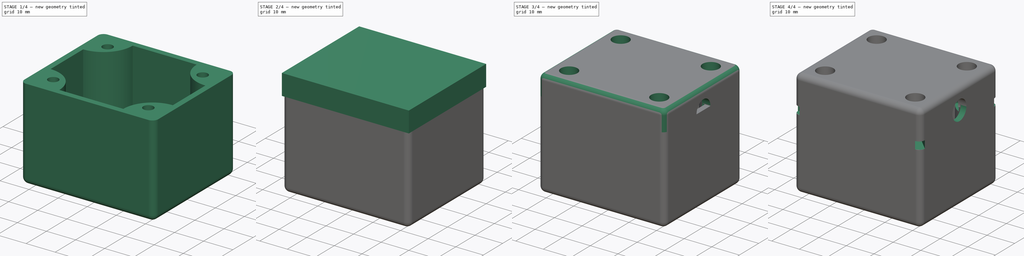
[diagram: build sequence overview — one tinted view per stage of 4, left to right]
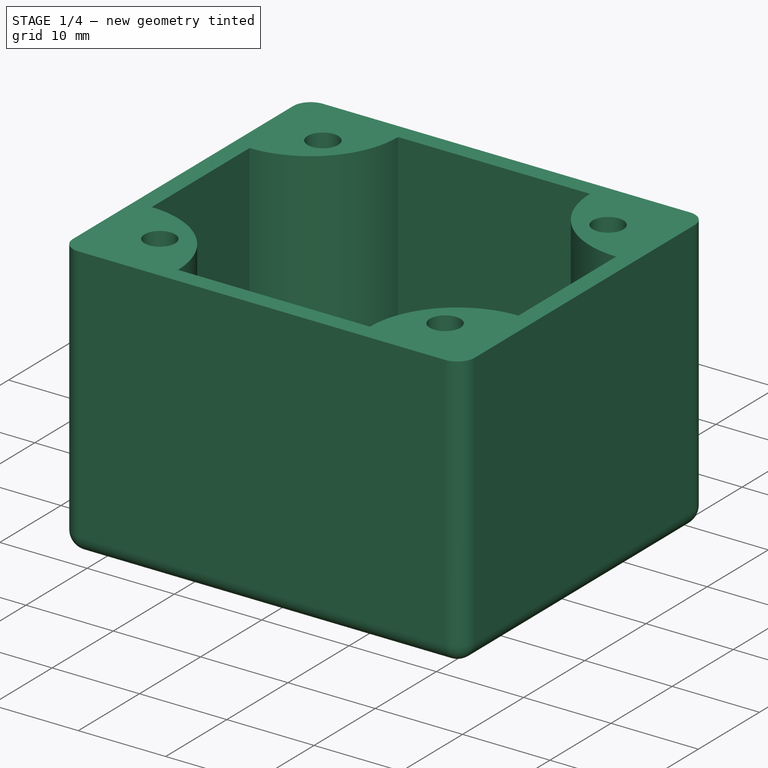
[diagram: stage 1 of 4 — iso view after this stage's code; geometry added in this stage tinted green]
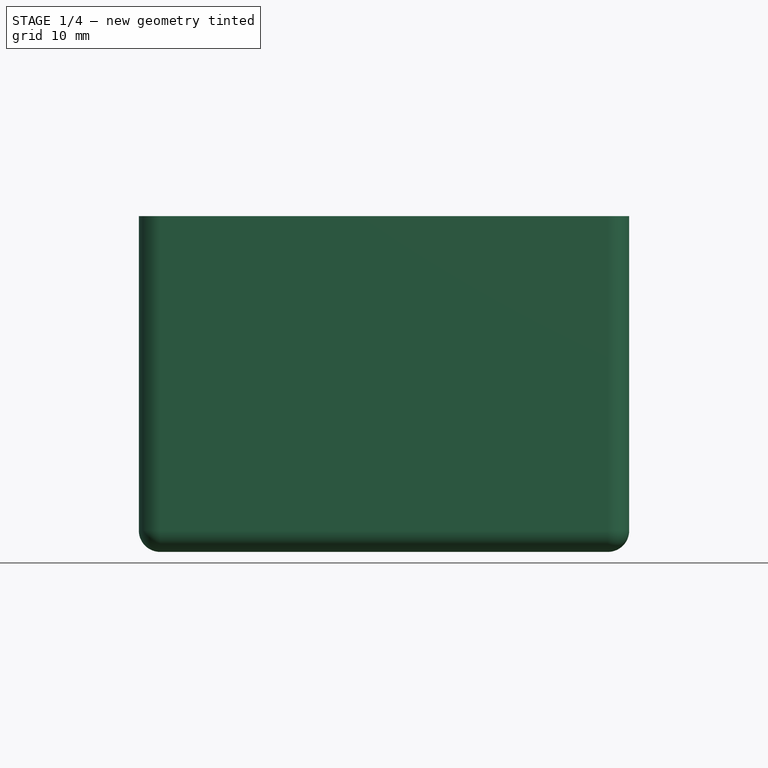
[diagram: stage 1 of 4 — front view after this stage's code; geometry added in this stage tinted green]
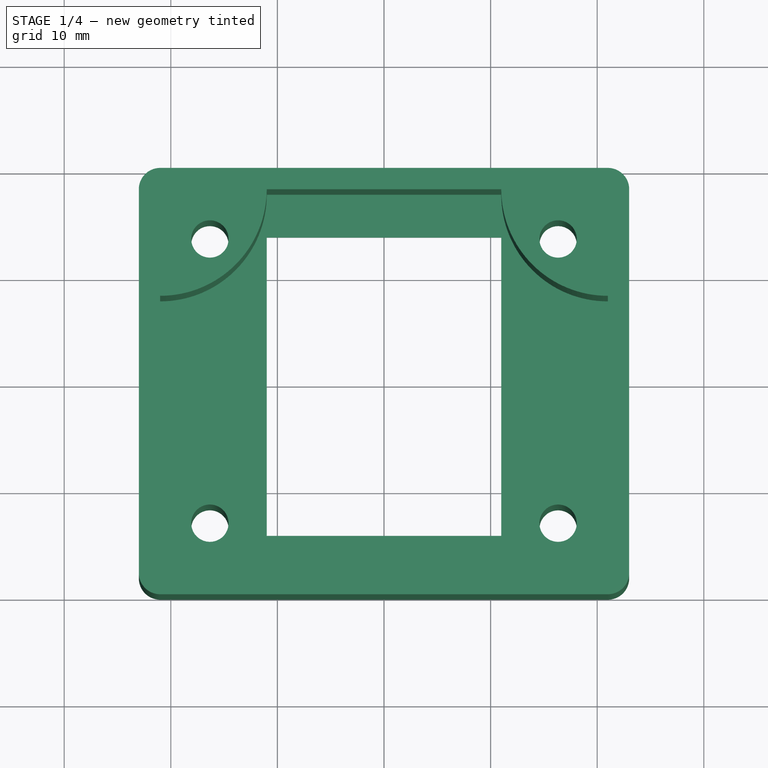
[diagram: stage 1 of 4 — top view after this stage's code; geometry added in this stage tinted green]
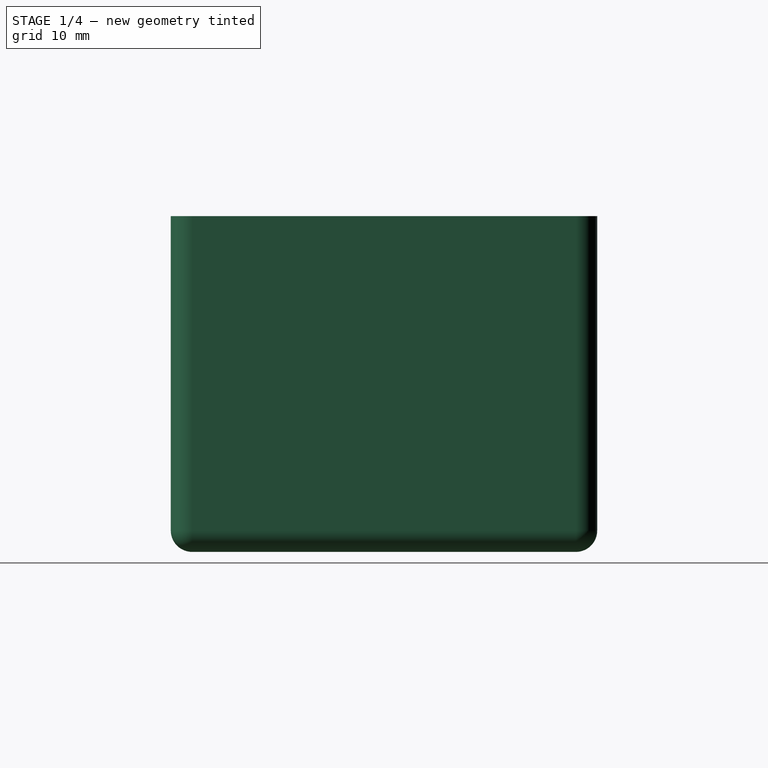
[diagram: stage 1 of 4 — right view after this stage's code; geometry added in this stage tinted green]
FCSTD DOCUMENT  (FreeCAD 0.18.4R)
Label: SwitchCase
License: All rights reserved
LicenseURL: http://en.wikipedia.org/wiki/All_rights_reserved
objects: Sketcher::SketchObject×12, PartDesign::Pocket×6, PartDesign::Pad×5, PartDesign::Fillet×2, PartDesign::Body×2, Spreadsheet::Sheet×1, PartDesign::ShapeBinder×1, App::Part×1
note: 39 computed .brp shape members not serialized (recipe doc carries the construction recipe); baked Part::Feature solids carry a one-line shape summary decoded from their .brp

FEATURE [Sketcher::SketchObject] Sketch
  MapMode = 5
  Support = -> [XY_Plane001]
  expr: Constraints[119] = Screws.M3Radius
  expr: Constraints[116] = Screws.M3NutRadius
  sketch-geometry (126):
    g0: LineSegment StartX=-11 StartY=14 StartZ=0 EndX=11 EndY=14 EndZ=0
    g1: LineSegment StartX=11 StartY=14 StartZ=0 EndX=11 EndY=-14 EndZ=0
    g2: LineSegment StartX=11 StartY=-14 StartZ=0 EndX=-11 EndY=-14 EndZ=0
    g3: LineSegment StartX=-11 StartY=-14 StartZ=0 EndX=-11 EndY=14 EndZ=0
    g4: LineSegment StartX=-23 StartY=20 StartZ=0 EndX=23 EndY=20 EndZ=0
    g5: LineSegment StartX=23 StartY=20 StartZ=0 EndX=23 EndY=-20 EndZ=0
    g6: LineSegment StartX=23 StartY=-20 StartZ=0 EndX=-23 EndY=-20 EndZ=0
    g7: LineSegment StartX=-23 StartY=-20 StartZ=0 EndX=-23 EndY=20 EndZ=0
    g8: LineSegment [constr] StartX=-11 StartY=14 StartZ=0 EndX=-23 EndY=14 EndZ=0
    g9: LineSegment [constr] StartX=11 StartY=14 StartZ=0 EndX=11 EndY=20 EndZ=0
    g10: LineSegment [constr] StartX=11 StartY=-14 StartZ=0 EndX=23 EndY=-14 EndZ=0
    g11: LineSegment [constr] StartX=-11 StartY=-14 StartZ=0 EndX=-11 EndY=-20 EndZ=0
    g12: LineSegment StartX=-11 StartY=18 StartZ=0 EndX=11 EndY=18 EndZ=0
    g13: LineSegment StartX=21 StartY=8 StartZ=0 EndX=21 EndY=-8 EndZ=0
    g14: LineSegment StartX=11 StartY=-18 StartZ=0 EndX=-11 EndY=-18 EndZ=0
    g15: LineSegment StartX=-21 StartY=-8 StartZ=0 EndX=-21 EndY=8 EndZ=0
    g16: LineSegment [constr] StartX=-21 StartY=18 StartZ=0 EndX=-23 EndY=18 EndZ=0
    g17: LineSegment [constr] StartX=21 StartY=18 StartZ=0 EndX=21 EndY=20 EndZ=0
    g18: LineSegment [constr] StartX=21 StartY=-18 StartZ=0 EndX=23 EndY=-18 EndZ=0
    g19: LineSegment [constr] StartX=-21 StartY=-18 StartZ=0 EndX=-21 EndY=-20 EndZ=0
    g20: ArcOfCircle CenterX=-21 CenterY=18 CenterZ=0 NormalX=0 NormalY=0 NormalZ=1 AngleXU=0 Radius=10 StartAngle=4.71239 EndAngle=6.28319
    g21: ArcOfCircle CenterX=21 CenterY=18 CenterZ=0 NormalX=0 NormalY=0 NormalZ=1 AngleXU=0 Radius=10 StartAngle=3.14159 EndAngle=4.71239
    g22: ArcOfCircle CenterX=21 CenterY=-18 CenterZ=0 NormalX=0 NormalY=0 NormalZ=1 AngleXU=0 Radius=10 StartAngle=1.5708 EndAngle=3.14159
    g23: ArcOfCircle CenterX=-21 CenterY=-18 CenterZ=0 NormalX=0 NormalY=0 NormalZ=1 AngleXU=0 Radius=10 StartAngle=0 EndAngle=1.5708
    g24: LineSegment StartX=-11 StartY=18 StartZ=0 EndX=-21 EndY=18 EndZ=0
    g25: LineSegment StartX=11 StartY=18 StartZ=0 EndX=21 EndY=18 EndZ=0
    g26: LineSegment StartX=21 StartY=18 StartZ=0 EndX=21 EndY=8 EndZ=0
    g27: LineSegment StartX=21 StartY=-8 StartZ=0 EndX=21 EndY=-18 EndZ=0
    g28: LineSegment StartX=11 StartY=-18 StartZ=0 EndX=21 EndY=-18 EndZ=0
    g29: LineSegment StartX=-21 StartY=18 StartZ=0 EndX=-21 EndY=8 EndZ=0
    g30: LineSegment StartX=-21 StartY=-8 StartZ=0 EndX=-21 EndY=-18 EndZ=0
    g31: LineSegment StartX=-21 StartY=-18 StartZ=0 EndX=-11 EndY=-18 EndZ=0
    g32: LineSegment [constr] StartX=-21 StartY=-18 StartZ=0 EndX=-13.9289 EndY=-10.9289 EndZ=0
    g33: LineSegment [constr] StartX=-21 StartY=-8 StartZ=0 EndX=-13.9289 EndY=-10.9289 EndZ=0
    g34: LineSegment [constr] StartX=-13.9289 StartY=-10.9289 StartZ=0 EndX=-11 EndY=-18 EndZ=0
    g35: LineSegment [constr] StartX=-13.0489 StartY=-14.2131 StartZ=0 EndX=-13.9289 EndY=-10.9289 EndZ=0
    g36: LineSegment [constr] StartX=-13.9289 StartY=-10.9289 StartZ=0 EndX=-17.2131 EndY=-10.0489 EndZ=0
    g37: LineSegment StartX=-17.2131 StartY=-10.0489 StartZ=0 EndX=-19.6172 EndY=-12.4531 EndZ=0
    g38: LineSegment [constr] StartX=-19.6172 StartY=-12.4531 StartZ=0 EndX=-18.7373 EndY=-15.7373 EndZ=0
    g39: LineSegment [constr] StartX=-18.7373 StartY=-15.7373 StartZ=0 EndX=-15.4531 EndY=-16.6172 EndZ=0
    g40: LineSegment StartX=-15.4531 StartY=-16.6172 StartZ=0 EndX=-13.0489 EndY=-14.2131 EndZ=0
    g41: Circle [constr] CenterX=-16.3331 CenterY=-13.3331 CenterZ=0 NormalX=0 NormalY=0 NormalZ=1 AngleXU=0 Radius=3.4
    g42: Circle CenterX=-16.3331 CenterY=-13.3331 CenterZ=0 NormalX=0 NormalY=0 NormalZ=1 AngleXU=0 Radius=1.75
    g43: LineSegment StartX=-17.2131 StartY=-10.0489 StartZ=0 EndX=-16.3245 EndY=-9.16035 EndZ=0
    g44: LineSegment StartX=-13.0489 StartY=-14.2131 StartZ=0 EndX=-12.1603 EndY=-13.3245 EndZ=0
    g45: LineSegment StartX=-19.6172 StartY=-12.4531 StartZ=0 EndX=-19.1773 EndY=-14.0952 EndZ=0
    g46: LineSegment StartX=-15.4531 StartY=-16.6172 StartZ=0 EndX=-17.0952 EndY=-16.1773 EndZ=0
    g47: LineSegment StartX=-19.1773 StartY=-14.0952 StartZ=0 EndX=-23 EndY=-17.9179 EndZ=0
    g48: LineSegment StartX=-17.0952 StartY=-16.1773 StartZ=0 EndX=-20.9179 EndY=-20 EndZ=0
    g49: LineSegment [constr] StartX=-21 StartY=18 StartZ=0 EndX=-13.9289 EndY=10.9289 EndZ=0
    g50: LineSegment [constr] StartX=21 StartY=18 StartZ=0 EndX=13.9289 EndY=10.9289 EndZ=0
    g51: LineSegment [constr] StartX=21 StartY=-18 StartZ=0 EndX=13.9289 EndY=-10.9289 EndZ=0
    g52: LineSegment [constr] StartX=-21 StartY=8 StartZ=0 EndX=-13.9289 EndY=10.9289 EndZ=0
    g53: LineSegment [constr] StartX=-13.9289 StartY=10.9289 StartZ=0 EndX=-11 EndY=18 EndZ=0
    g54: LineSegment [constr] StartX=11 StartY=18 StartZ=0 EndX=13.9289 EndY=10.9289 EndZ=0
    g55: LineSegment [constr] StartX=13.9289 StartY=10.9289 StartZ=0 EndX=21 EndY=8 EndZ=0
    g56: LineSegment [constr] StartX=21 StartY=-8 StartZ=0 EndX=13.9289 EndY=-10.9289 EndZ=0
    g57: LineSegment [constr] StartX=13.9289 StartY=-10.9289 StartZ=0 EndX=11 EndY=-18 EndZ=0
    g58: LineSegment StartX=-13.0489 StartY=14.2131 StartZ=0 EndX=-15.4531 EndY=16.6172 EndZ=0
    g59: LineSegment [constr] StartX=-15.4531 StartY=16.6172 StartZ=0 EndX=-18.7373 EndY=15.7373 EndZ=0
    g60: LineSegment [constr] StartX=-18.7373 StartY=15.7373 StartZ=0 EndX=-19.6172 EndY=12.4531 EndZ=0
    g61: LineSegment StartX=-19.6172 StartY=12.4531 StartZ=0 EndX=-17.2131 EndY=10.0489 EndZ=0
    g62: LineSegment [constr] StartX=-17.2131 StartY=10.0489 StartZ=0 EndX=-13.9289 EndY=10.9289 EndZ=0
    g63: LineSegment [constr] StartX=-13.9289 StartY=10.9289 StartZ=0 EndX=-13.0489 EndY=14.2131 EndZ=0
    g64: Circle [constr] CenterX=-16.3331 CenterY=13.3331 CenterZ=0 NormalX=0 NormalY=0 NormalZ=1 AngleXU=0 Radius=3.4
    g65: LineSegment StartX=-17.2131 StartY=10.0489 StartZ=0 EndX=-16.3245 EndY=9.16035 EndZ=0
    g66: LineSegment StartX=-13.0489 StartY=14.2131 StartZ=0 EndX=-12.1603 EndY=13.3245 EndZ=0
    g67: LineSegment StartX=-15.4531 StartY=16.6172 StartZ=0 EndX=-17.0952 EndY=16.1773 EndZ=0
    g68: LineSegment StartX=-19.6172 StartY=12.4531 StartZ=0 EndX=-19.1773 EndY=14.0952 EndZ=0
    g69: LineSegment StartX=-19.1773 StartY=14.0952 StartZ=0 EndX=-23 EndY=17.9179 EndZ=0
    g70: LineSegment StartX=-17.0952 StartY=16.1773 StartZ=0 EndX=-20.9179 EndY=20 EndZ=0
    g71: Circle CenterX=-16.3331 CenterY=13.3331 CenterZ=0 NormalX=0 NormalY=0 NormalZ=1 AngleXU=0 Radius=1.75
    g72: LineSegment StartX=17.2131 StartY=10.0489 StartZ=0 EndX=19.6172 EndY=12.4531 EndZ=0
    g73: LineSegment [constr] StartX=19.6172 StartY=12.4531 StartZ=0 EndX=18.7373 EndY=15.7373 EndZ=0
    g74: LineSegment [constr] StartX=18.7373 StartY=15.7373 StartZ=0 EndX=15.4531 EndY=16.6172 EndZ=0
    g75: LineSegment StartX=15.4531 StartY=16.6172 StartZ=0 EndX=13.0489 EndY=14.2131 EndZ=0
    g76: LineSegment [constr] StartX=13.0489 StartY=14.2131 StartZ=0 EndX=13.9289 EndY=10.9289 EndZ=0
    g77: LineSegment [constr] StartX=13.9289 StartY=10.9289 StartZ=0 EndX=17.2131 EndY=10.0489 EndZ=0
    g78: Circle [constr] CenterX=16.3331 CenterY=13.3331 CenterZ=0 NormalX=0 NormalY=0 NormalZ=1 AngleXU=0 Radius=3.4
    g79: LineSegment StartX=13.0489 StartY=-14.2131 StartZ=0 EndX=15.4531 EndY=-16.6172 EndZ=0
    g80: LineSegment [constr] StartX=15.4531 StartY=-16.6172 StartZ=0 EndX=18.7373 EndY=-15.7373 EndZ=0
    g81: LineSegment [constr] StartX=18.7373 StartY=-15.7373 StartZ=0 EndX=19.6172 EndY=-12.4531 EndZ=0
    g82: LineSegment StartX=19.6172 StartY=-12.4531 StartZ=0 EndX=17.2131 EndY=-10.0489 EndZ=0
    g83: LineSegment [constr] StartX=17.2131 StartY=-10.0489 StartZ=0 EndX=13.9289 EndY=-10.9289 EndZ=0
    g84: LineSegment [constr] StartX=13.9289 StartY=-10.9289 StartZ=0 EndX=13.0489 EndY=-14.2131 EndZ=0
    g85: Circle [constr] CenterX=16.3331 CenterY=-13.3331 CenterZ=0 NormalX=0 NormalY=0 NormalZ=1 AngleXU=0 Radius=3.4
    g86: LineSegment StartX=13.0489 StartY=14.2131 StartZ=0 EndX=12.1603 EndY=13.3245 EndZ=0
    g87: LineSegment StartX=17.2131 StartY=10.0489 StartZ=0 EndX=16.3245 EndY=9.16035 EndZ=0
    g88: LineSegment StartX=19.6172 StartY=12.4531 StartZ=0 EndX=19.1773 EndY=14.0952 EndZ=0
    g89: LineSegment StartX=15.4531 StartY=16.6172 StartZ=0 EndX=17.0952 EndY=16.1773 EndZ=0
    g90: LineSegment StartX=17.0952 StartY=16.1773 StartZ=0 EndX=20.9179 EndY=20 EndZ=0
    g91: LineSegment StartX=19.1773 StartY=14.0952 StartZ=0 EndX=23 EndY=17.9179 EndZ=0
    g92: LineSegment StartX=13.0489 StartY=-14.2131 StartZ=0 EndX=12.1603 EndY=-13.3245 EndZ=0
    g93: LineSegment StartX=17.2131 StartY=-10.0489 StartZ=0 EndX=16.3245 EndY=-9.16035 EndZ=0
    g94: LineSegment StartX=15.4531 StartY=-16.6172 StartZ=0 EndX=17.0952 EndY=-16.1773 EndZ=0
    g95: LineSegment StartX=19.6172 StartY=-12.4531 StartZ=0 EndX=19.1773 EndY=-14.0952 EndZ=0
    g96: LineSegment StartX=19.1773 StartY=-14.0952 StartZ=0 EndX=23 EndY=-17.9179 EndZ=0
    g97: LineSegment StartX=17.0952 StartY=-16.1773 StartZ=0 EndX=20.9179 EndY=-20 EndZ=0
    g98: Circle CenterX=16.3331 CenterY=13.3331 CenterZ=0 NormalX=0 NormalY=0 NormalZ=1 AngleXU=0 Radius=1.75
    g99: Circle CenterX=16.3331 CenterY=-13.3331 CenterZ=0 NormalX=0 NormalY=0 NormalZ=1 AngleXU=0 Radius=1.75
    g100: LineSegment StartX=-10.802 StartY=17.8 StartZ=0 EndX=10.802 EndY=17.8 EndZ=0
    g101: LineSegment StartX=20.8 StartY=7.80196 StartZ=0 EndX=20.8 EndY=-7.80196 EndZ=0
    g102: LineSegment StartX=10.802 StartY=-17.8 StartZ=0 EndX=-10.802 EndY=-17.8 EndZ=0
    g103: LineSegment StartX=-20.8 StartY=7.80196 StartZ=0 EndX=-20.8 EndY=-7.80196 EndZ=0
    g104: ArcOfCircle CenterX=-21 CenterY=18 CenterZ=0 NormalX=0 NormalY=0 NormalZ=1 AngleXU=0 Radius=10.2 StartAngle=4.732 EndAngle=6.26358
    g105: ArcOfCircle CenterX=21 CenterY=18 CenterZ=0 NormalX=0 NormalY=0 NormalZ=1 AngleXU=0 Radius=10.2 StartAngle=3.1612 EndAngle=4.69278
    g106: ArcOfCircle CenterX=21 CenterY=-18 CenterZ=0 NormalX=0 NormalY=0 NormalZ=1 AngleXU=0 Radius=10.2 StartAngle=1.59041 EndAngle=3.12198
    g107: ArcOfCircle CenterX=-21 CenterY=-18 CenterZ=0 NormalX=0 NormalY=0 NormalZ=1 AngleXU=0 Radius=10.2 StartAngle=0.0196091 EndAngle=1.55119
    g108: LineSegment [constr] StartX=-20.8 StartY=7.80196 StartZ=0 EndX=-21 EndY=7.80196 EndZ=0
    g109: LineSegment [constr] StartX=10.802 StartY=17.8 StartZ=0 EndX=10.802 EndY=18 EndZ=0
    g110: LineSegment [constr] StartX=20.8 StartY=-7.80196 StartZ=0 EndX=21 EndY=-7.80196 EndZ=0
    g111: LineSegment [constr] StartX=-10.802 StartY=-17.8 StartZ=0 EndX=-10.802 EndY=-18 EndZ=0
    g112: LineSegment [constr] StartX=-20.8 StartY=7.80196 StartZ=0 EndX=-20.8039 EndY=8.00192 EndZ=0
    g113: LineSegment StartX=-20 StartY=7.04555 StartZ=0 EndX=-20 EndY=-7.04555 EndZ=0
    g114: LineSegment StartX=-10.0455 StartY=17 StartZ=0 EndX=10.0455 EndY=17 EndZ=0
    g115: LineSegment StartX=20 StartY=7.04555 StartZ=0 EndX=20 EndY=-7.04555 EndZ=0
    g116: LineSegment StartX=-10.0455 StartY=-17 StartZ=0 EndX=10.0455 EndY=-17 EndZ=0
    g117: LineSegment [constr] StartX=10.0455 StartY=-17 StartZ=0 EndX=10.0455 EndY=-17.8 EndZ=0
    g118: LineSegment [constr] StartX=-20 StartY=-7.04555 StartZ=0 EndX=-20.8 EndY=-7.04555 EndZ=0
    g119: LineSegment [constr] StartX=-10.0455 StartY=17 StartZ=0 EndX=-10.0455 EndY=17.8 EndZ=0
    g120: LineSegment [constr] StartX=20 StartY=7.04555 StartZ=0 EndX=20.8 EndY=7.04555 EndZ=0
    g121: ArcOfCircle CenterX=-21 CenterY=18 CenterZ=0 NormalX=0 NormalY=0 NormalZ=1 AngleXU=0 Radius=11 StartAngle=4.80342 EndAngle=6.19215
    g122: ArcOfCircle CenterX=21 CenterY=18 CenterZ=0 NormalX=0 NormalY=0 NormalZ=1 AngleXU=0 Radius=11 StartAngle=3.23263 EndAngle=4.62135
    g123: ArcOfCircle CenterX=21 CenterY=-18 CenterZ=0 NormalX=0 NormalY=0 NormalZ=1 AngleXU=0 Radius=11 StartAngle=1.66183 EndAngle=3.05056
    g124: ArcOfCircle CenterX=-21 CenterY=-18 CenterZ=0 NormalX=0 NormalY=0 NormalZ=1 AngleXU=0 Radius=11 StartAngle=0.0910348 EndAngle=1.47976
    g125: LineSegment [constr] StartX=-20 StartY=-7.04555 StartZ=0 EndX=-20.0727 EndY=-7.84224 EndZ=0
  constraints (337):
    c: Coincident(g0,g1)
    c: Coincident(g1,g2)
    c: Coincident(g2,g3)
    c: Coincident(g3,g0)
    c: Horizontal(g0)
    c: Horizontal(g2)
    c: Vertical(g1)
    c: Vertical(g3)
    c: DistanceX(g0,g0) = 22
    c: DistanceY(g3,g3) = 28
    c: Coincident(g4,g5)
    c: Coincident(g5,g6)
    c: Coincident(g6,g7)
    c: Coincident(g7,g4)
    c: Horizontal(g4)
    c: Horizontal(g6)
    c: Vertical(g5)
    c: Vertical(g7)
    c: Coincident(g8,g0)
    c: PointOnObject(g8,g7)
    c: Horizontal(g8)
    c: Coincident(g9,g0)
    c: PointOnObject(g9,g4)
    c: Vertical(g9)
    c: Coincident(g10,g1)
    c: PointOnObject(g10,g5)
    c: Horizontal(g10)
    c: Coincident(g11,g2)
    c: PointOnObject(g11,g6)
    c: Vertical(g11)
    c: Equal(g11,g9)
    c: Equal(g8,g10)
    c: DistanceX(g4,g0) = 12
    c: DistanceY(g0,g4) = 6
    c: Horizontal(g12)
    c: Horizontal(g14)
    c: Vertical(g13)
    c: Vertical(g15)
    c: PointOnObject(g16,g7)
    c: Horizontal(g16)
    c: PointOnObject(g17,g4)
    c: Vertical(g17)
    c: PointOnObject(g18,g5)
    c: Horizontal(g18)
    c: PointOnObject(g19,g6)
    c: Vertical(g19)
    c: Equal(g19,g18)
    c: Equal(g18,g17)
    c: Equal(g17,g16)
    c: DistanceX(g4,g16) = 2
    c: Equal(g20,g21)
    c: Equal(g21,g22)
    c: Equal(g22,g23)
    c: Coincident(g12,g20)
    c: Coincident(g15,g20)
    c: Coincident(g13,g21)
    c: Coincident(g13,g22)
    c: Coincident(g14,g22)
    c: Coincident(g15,g23)
    c: Coincident(g18,g22)
    c: Coincident(g19,g23)
    c: Coincident(g20,g16)
    c: Coincident(g21,g17)
    c: Coincident(g14,g23)
    c: Coincident(g12,g21)
    c: Coincident(g24,g12)
    c: Coincident(g24,g20)
    c: Horizontal(g24)
    c: Coincident(g25,g12)
    c: Coincident(g25,g21)
    c: Horizontal(g25)
    c: Coincident(g26,g21)
    c: Coincident(g26,g13)
    c: Vertical(g26)
    c: Coincident(g27,g13)
    c: Vertical(g27)
    c: Coincident(g18,g27)
    c: Coincident(g28,g14)
    c: Coincident(g28,g22)
    c: Horizontal(g28)
    c: Coincident(g29,g20)
    c: Coincident(g29,g15)
    c: Vertical(g29)
    c: Coincident(g30,g15)
    c: Vertical(g30)
    c: Coincident(g31,g30)
    c: Coincident(g31,g14)
    c: Horizontal(g31)
    c: Coincident(g23,g30)
    c: PointOnObject(g12,g1)
    c: Symmetric(g2,g0,g-1)  '__ANCHOR__'
    c: Coincident(g32,g23)
    c: PointOnObject(g32,g23)
    c: Coincident(g33,g15)
    c: Coincident(g33,g32)
    c: Coincident(g34,g32)
    c: Coincident(g34,g14)
    c: Equal(g34,g33)
    c: Coincident(g35,g36)
    c: Coincident(g36,g37)
    c: Coincident(g37,g38)
    c: Coincident(g38,g39)
    c: Coincident(g39,g40)
    c: Coincident(g40,g35)
    c: Equal(g35, g36-g40) x5
    c: PointOnObject(g35,g41)
    c: PointOnObject(g36,g41)
    c: PointOnObject(g37,g41)
    c: PointOnObject(g38,g41)
    c: PointOnObject(g39,g41)
    c: PointOnObject(g40,g41)
    c: PointOnObject(g41,g32)
    c: Radius(g41) = 3.4
    c: Coincident(g35,g32)
    c: Coincident(g42,g41)
    c: Radius(g42) = 1.75
    c: Coincident(g43,g37)
    c: PointOnObject(g43,g23)
    c: Coincident(g44,g40)
    c: PointOnObject(g44,g23)
    c: Parallel(g43,g37)
    c: Parallel(g40,g44)
    c: Coincident(g45,g37)
    c: Coincident(g46,g40)
    c: PointOnObject(g46,g39)
    c: Symmetric(g37,g38,g45)
    c: Coincident(g47,g45)
    c: PointOnObject(g47,g7)
    c: Coincident(g48,g46)
    c: PointOnObject(g48,g6)
    c: Parallel(g48,g32)
    c: Parallel(g32,g47)
    c: Equal(g45,g46)
    c: Coincident(g49,g20)
    c: PointOnObject(g49,g20)
    c: Coincident(g50,g21)
    c: PointOnObject(g50,g21)
    c: Coincident(g51,g22)
    c: PointOnObject(g51,g22)
    c: Coincident(g15,g52)
    c: Coincident(g52,g49)
    c: Coincident(g52,g53)
    c: Coincident(g53,g12)
    c: Coincident(g12,g54)
    c: Coincident(g54,g50)
    c: Coincident(g54,g55)
    c: Coincident(g55,g13)
    c: Coincident(g13,g56)
    c: Coincident(g56,g51)
    c: Coincident(g56,g57)
    c: Coincident(g14,g57)
    c: Equal(g57,g56)
    c: Equal(g55,g54)
    c: Equal(g52,g53)
    c: Coincident(g58,g59)
    c: Coincident(g59,g60)
    c: Coincident(g60,g61)
    c: Coincident(g61,g62)
    c: Coincident(g62,g63)
    c: Coincident(g63,g58)
    c: Equal(g58, g59-g63) x5
    c: PointOnObject(g58,g64)
    c: PointOnObject(g59,g64)
    c: PointOnObject(g60,g64)
    c: PointOnObject(g61,g64)
    c: PointOnObject(g62,g64)
    c: PointOnObject(g63,g64)
    c: PointOnObject(g64,g49)
    c: Equal(g64,g41)
    c: Coincident(g62,g49)
    c: Coincident(g65,g61)
    c: PointOnObject(g65,g20)
    c: Coincident(g66,g58)
    c: PointOnObject(g66,g20)
    c: Coincident(g67,g58)
    c: Coincident(g68,g61)
    c: PointOnObject(g68,g60)
    c: Coincident(g69,g68)
    c: PointOnObject(g69,g7)
    c: Coincident(g70,g67)
    c: PointOnObject(g70,g4)
    c: Symmetric(g59,g58,g67)
    c: Equal(g67,g68)
    c: Parallel(g65,g61)
    c: Parallel(g66,g58)
    c: Parallel(g69,g70)
    c: Parallel(g70,g49)
    c: Coincident(g71,g64)
    c: Equal(g71,g42)
    c: Coincident(g72,g73)
    c: Coincident(g73,g74)
    c: Coincident(g74,g75)
    c: Coincident(g75,g76)
    c: Coincident(g76,g77)
    c: Coincident(g77,g72)
    c: Equal(g72, g73-g77) x5
    c: PointOnObject(g72,g78)
    c: PointOnObject(g73,g78)
    c: PointOnObject(g74,g78)
    c: PointOnObject(g75,g78)
    c: PointOnObject(g76,g78)
    c: PointOnObject(g77,g78)
    c: PointOnObject(g78,g50)
    c: Coincident(g79,g80)
    c: Coincident(g80,g81)
    c: Coincident(g81,g82)
    c: Coincident(g82,g83)
    c: Coincident(g83,g84)
    c: Coincident(g84,g79)
    c: Equal(g79, g80-g84) x5
    c: PointOnObject(g79,g85)
    c: PointOnObject(g80,g85)
    c: PointOnObject(g81,g85)
    c: PointOnObject(g82,g85)
    c: PointOnObject(g83,g85)
    c: PointOnObject(g84,g85)
    c: PointOnObject(g85,g51)
    c: Equal(g85,g78)
    c: Equal(g78,g64)
    c: Coincident(g76,g50)
    c: Coincident(g83,g51)
    c: Coincident(g86,g75)
    c: PointOnObject(g86,g21)
    c: Coincident(g87,g72)
    c: PointOnObject(g87,g21)
    c: Coincident(g88,g72)
    c: Coincident(g89,g75)
    c: PointOnObject(g89,g74)
    c: Equal(g89,g88)
    c: Symmetric(g72,g73,g88)
    c: Coincident(g90,g89)
    c: PointOnObject(g90,g4)
    c: Coincident(g91,g88)
    c: PointOnObject(g91,g5)
    c: Parallel(g91,g50)
    c: Parallel(g50,g90)
    c: Parallel(g75,g86)
    c: Parallel(g72,g87)
    c: Coincident(g92,g79)
    c: PointOnObject(g92,g22)
    c: Coincident(g93,g82)
    c: PointOnObject(g93,g22)
    c: Coincident(g94,g79)
    c: Coincident(g95,g82)
    c: PointOnObject(g95,g81)
    c: Coincident(g96,g95)
    c: PointOnObject(g96,g5)
    c: Coincident(g97,g94)
    c: PointOnObject(g97,g6)
    c: Symmetric(g79,g80,g94)
    c: Equal(g95,g94)
    c: Parallel(g97,g51)
    c: Parallel(g51,g96)
    c: Parallel(g82,g93)
    c: Parallel(g79,g92)
    c: Coincident(g98,g78)
    c: Coincident(g99,g85)
    c: Equal(g99,g98)
    c: Equal(g98,g71)
    c: Horizontal(g100)
    c: Vertical(g101)
    c: Horizontal(g102)
    c: Vertical(g103)
    c: Coincident(g104,g20)
    c: Coincident(g104,g103)
    c: Coincident(g104,g100)
    c: Coincident(g105,g21)
    c: Coincident(g105,g100)
    c: Coincident(g106,g22)
    c: Coincident(g106,g101)
    c: Coincident(g106,g102)
    c: Coincident(g107,g23)
    c: Coincident(g107,g102)
    c: Coincident(g107,g103)
    c: Coincident(g101,g105)
    c: Equal(g104,g105)
    c: Equal(g105,g106)
    c: Equal(g106,g107)
    c: Coincident(g108,g103)
    c: PointOnObject(g108,g15)
    c: Horizontal(g108)
    c: Coincident(g109,g100)
    c: PointOnObject(g109,g12)
    c: Vertical(g109)
    c: Coincident(g110,g101)
    c: PointOnObject(g110,g13)
    c: Horizontal(g110)
    c: Coincident(g111,g102)
    c: PointOnObject(g111,g14)
    c: Vertical(g111)
    c: Equal(g108,g109)
    c: Equal(g109,g110)
    c: Equal(g110,g111)
    c: DistanceX(g108,g108) = 0.2
    c: Coincident(g112,g103)
    c: PointOnObject(g112,g20)
    c: PointOnObject(g20,g112)
    c: Equal(g112,g108)
    c: Vertical(g113)
    c: Horizontal(g114)
    c: Vertical(g115)
    c: Horizontal(g116)
    c: Coincident(g117,g116)
    c: PointOnObject(g117,g102)
    c: Vertical(g117)
    c: Coincident(g118,g113)
    c: PointOnObject(g118,g103)
    c: Horizontal(g118)
    c: Coincident(g119,g114)
    c: PointOnObject(g119,g100)
    c: Vertical(g119)
    c: Coincident(g120,g115)
    c: PointOnObject(g120,g101)
    c: Horizontal(g120)
    c: Coincident(g121,g20)
    c: Coincident(g121,g114)
    c: Coincident(g121,g113)
    c: Coincident(g122,g21)
    c: Coincident(g122,g114)
    c: Coincident(g122,g115)
    c: Coincident(g123,g22)
    c: Coincident(g123,g115)
    c: Coincident(g123,g116)
    c: Coincident(g124,g23)
    c: Coincident(g124,g113)
    c: Coincident(g124,g116)
    c: Equal(g121,g122)
    c: Equal(g122,g123)
    c: Equal(g123,g124)
    c: Coincident(g125,g113)
    c: PointOnObject(g125,g107)
    c: PointOnObject(g23,g125)
    c: Equal(g125,g118)
    c: DistanceX(g118,g118) = 0.8
    c: Equal(g125,g117)
    c: Equal(g117,g120)
    c: Equal(g120,g119)
FEATURE [Sketcher::SketchObject] Sketch001
  ExternalGeometry = -> [Sketch]
  MapMode = 5
  Support = -> [XY_Plane001]
  sketch-geometry (12):
    g0: LineSegment StartX=-11 StartY=14 StartZ=0 EndX=11 EndY=14 EndZ=0
    g1: LineSegment StartX=11 StartY=14 StartZ=0 EndX=11 EndY=-14 EndZ=0
    g2: LineSegment StartX=11 StartY=-14 StartZ=0 EndX=-11 EndY=-14 EndZ=0
    g3: LineSegment StartX=-11 StartY=-14 StartZ=0 EndX=-11 EndY=14 EndZ=0
    g4: LineSegment StartX=-23 StartY=20 StartZ=0 EndX=23 EndY=20 EndZ=0
    g5: LineSegment StartX=23 StartY=20 StartZ=0 EndX=23 EndY=-20 EndZ=0
    g6: LineSegment StartX=23 StartY=-20 StartZ=0 EndX=-23 EndY=-20 EndZ=0
    g7: LineSegment StartX=-23 StartY=-20 StartZ=0 EndX=-23 EndY=20 EndZ=0
    g8: Circle CenterX=-16.3331 CenterY=13.3331 CenterZ=0 NormalX=0 NormalY=0 NormalZ=1 AngleXU=0 Radius=1.75
    g9: Circle CenterX=16.3331 CenterY=13.3331 CenterZ=0 NormalX=0 NormalY=0 NormalZ=1 AngleXU=0 Radius=1.75
    g10: Circle CenterX=16.3331 CenterY=-13.3331 CenterZ=0 NormalX=0 NormalY=0 NormalZ=1 AngleXU=0 Radius=1.75
    g11: Circle CenterX=-16.3331 CenterY=-13.3331 CenterZ=0 NormalX=0 NormalY=0 NormalZ=1 AngleXU=0 Radius=1.75
  constraints (24):
    c: Coincident(g0,g1)
    c: Coincident(g1,g2)
    c: Coincident(g2,g3)
    c: Coincident(g3,g0)
    c: Coincident(g0,g-6)
    c: Coincident(g1,g-5)
    c: Coincident(g4,g5)
    c: Coincident(g5,g6)
    c: Coincident(g6,g7)
    c: Coincident(g7,g4)
    c: Coincident(g4,g-3)
    c: Coincident(g5,g-4)
    c: Coincident(g4,g-3)
    c: Coincident(g0,g-6)
    c: Coincident(g2,g-5)
    c: Coincident(g6,g-4)
    c: Coincident(g8,g-7)
    c: Coincident(g9,g-8)
    c: Coincident(g10,g-9)
    c: Coincident(g11,g-10)
    c: Equal(g11,g-10)
    c: Equal(g8,g-7)
    c: Equal(g9,g-8)
    c: Equal(g-9,g10)
FEATURE [PartDesign::Pad] Pad
  Length = 1.5
  Length2 = 100
  Profile = -> Sketch001
  Type = 0
FEATURE [Spreadsheet::Sheet] Spreadsheet001  label="Screws"
  cells = B2=M3Radius; C2(M3Radius)==1.75mm; B3=M3HeadRadius; C3(M3HeadRadius)==3mm; B4=M3HeadHeight; C4(M3HeadHeight)==2.95mm; B5=M3WasherRadius; C5(M3WasherRadius)==3.7mm; B6=M3WasherHeight; C6(M3WasherHeight)==0.5mm; B7=M3NutRadius; C7(M3NutRadius)==3.4mm; B8=M3NutHeight; C8(M3NutHeight)==2.75mm; B9=M3NylocNutHeight; C9(M3NylocNutHeight)==4.1mm; B10=M3NutDuctWidth; C10(M3NutDuctWidth)==5.85mm; B11=M4Radius; C11(M4Radius)==2.2mm; B12=M4HeadRadius; C12(M4HeadRadius)==3.75mm; B13=M4HeadHeight; C13(M4HeadHeight)==4mm; B14=M4WasherRadius; C14(M4WasherRadius)==4.7mm; B15=M4NutRadius; C15(M4NutRadius)==4.25mm; B16=M4NutHeight; C16(M4NutHeight)==3.3mm; B17=M4NutDuctWidth; C17(M4NutDuctWidth)==7.1mm; B18=M5Radius; C18(M5Radius)==2.66mm; B19=M5HeadRadius; C19(M5HeadRadius)==4.5mm; B20=M5HeadHeight; C20(M5HeadHeight)==5mm; B21=M5NutRadius; C21(M5NutRadius)==4.75mm; B22=M5NutHeight; C22(M5NutHeight)==4mm; B24=M6Radius; C24(M6Radius)==3.15mm; B25=M6HeadRadius; C25(M6HeadRadius)==5.5mm; B32=
FEATURE [Sketcher::SketchObject] Sketch002
  AttachmentOffset = pos=(0,0,1.5) rot=(0,0,1;0rad)
  ExternalGeometry = -> [Sketch]
  MapMode = 5
  Placement = pos=(0,0,1.5) rot=(0,0,1;0rad)
  Support = -> [XY_Plane001]
  expr: AttachmentOffset.Base.z = Sketch001.AttachmentOffset.Base.z + Pad.Length
  sketch-geometry (16):
    g0: ArcOfCircle CenterX=-21 CenterY=18 CenterZ=0 NormalX=0 NormalY=0 NormalZ=1 AngleXU=0 Radius=10 StartAngle=4.71239 EndAngle=6.28319
    g1: ArcOfCircle CenterX=21 CenterY=-18 CenterZ=0 NormalX=0 NormalY=0 NormalZ=1 AngleXU=0 Radius=10 StartAngle=1.5708 EndAngle=3.14159
    g2: ArcOfCircle CenterX=-21 CenterY=-18 CenterZ=0 NormalX=0 NormalY=0 NormalZ=1 AngleXU=0 Radius=10 StartAngle=0 EndAngle=1.5708
    g3: ArcOfCircle CenterX=21 CenterY=18 CenterZ=0 NormalX=0 NormalY=0 NormalZ=1 AngleXU=0 Radius=10 StartAngle=3.14159 EndAngle=4.71239
    g4: LineSegment StartX=-23 StartY=20 StartZ=0 EndX=23 EndY=20 EndZ=0
    g5: LineSegment StartX=23 StartY=20 StartZ=0 EndX=23 EndY=-20 EndZ=0
    g6: LineSegment StartX=23 StartY=-20 StartZ=0 EndX=-23 EndY=-20 EndZ=0
    g7: LineSegment StartX=-23 StartY=-20 StartZ=0 EndX=-23 EndY=20 EndZ=0
    g8: Circle CenterX=-16.3331 CenterY=13.3331 CenterZ=0 NormalX=0 NormalY=0 NormalZ=1 AngleXU=0 Radius=1.75
    g9: Circle CenterX=16.3331 CenterY=13.3331 CenterZ=0 NormalX=0 NormalY=0 NormalZ=1 AngleXU=0 Radius=1.75
    g10: Circle CenterX=16.3331 CenterY=-13.3331 CenterZ=0 NormalX=0 NormalY=0 NormalZ=1 AngleXU=0 Radius=1.75
    g11: Circle CenterX=-16.3331 CenterY=-13.3331 CenterZ=0 NormalX=0 NormalY=0 NormalZ=1 AngleXU=0 Radius=1.75
    g12: LineSegment StartX=-11 StartY=18 StartZ=0 EndX=11 EndY=18 EndZ=0
    g13: LineSegment StartX=-21 StartY=-8 StartZ=0 EndX=-21 EndY=8 EndZ=0
    g14: LineSegment StartX=21 StartY=8 StartZ=0 EndX=21 EndY=-8 EndZ=0
    g15: LineSegment StartX=-11 StartY=-18 StartZ=0 EndX=11 EndY=-18 EndZ=0
  constraints (38):
    c: Coincident(g0,g-5)
    c: Coincident(g0,g-5)
    c: Coincident(g0,g-5)
    c: Coincident(g1,g-7)
    c: Coincident(g1,g-7)
    c: Coincident(g1,g-7)
    c: Coincident(g2,g-8)
    c: Coincident(g2,g-8)
    c: Coincident(g2,g-8)
    c: Coincident(g3,g-6)
    c: Coincident(g3,g-6)
    c: Equal(g3,g-6)
    c: Coincident(g4,g5)
    c: Coincident(g5,g6)
    c: Coincident(g6,g7)
    c: Coincident(g7,g4)
    c: Horizontal(g4)
    c: Horizontal(g6)
    c: Vertical(g5)
    c: Vertical(g7)
    c: Coincident(g4,g-3)
    c: Coincident(g5,g-4)
    c: Coincident(g8,g-10)
    c: Coincident(g9,g-11)
    c: Coincident(g10,g-12)
    c: Coincident(g11,g-9)
    c: Equal(g-9,g11)
    c: Equal(g8,g-10)
    c: Equal(g9,g-11)
    c: Equal(g10,g-12)
    c: Coincident(g12,g0)
    c: Coincident(g12,g3)
    c: Coincident(g13,g2)
    c: Coincident(g13,g0)
    c: Coincident(g14,g3)
    c: Coincident(g1,g14)
    c: Coincident(g15,g2)
    c: Coincident(g15,g1)
FEATURE [PartDesign::Pad] Pad001
  BaseFeature = -> Pad
  Length = 30
  Length2 = 100
  Profile = -> Sketch002
  Refine = true
  Type = 0
FEATURE [PartDesign::Body] Body001
  Group = -> [ShapeBinder,Sketch006,Pad002,Sketch007,Pad003,Sketch008,Pad004,Sketch011,Sketch009,Fillet,Pocket005,Pocket003,Sketch010,Pocket004]
  Origin = -> Origin002
  Tip = -> Pocket004
FEATURE [PartDesign::Fillet] Fillet001
  Base = -> Pad001 [Edge1,Edge4,Edge3,Edge2,Edge56,Edge54,Edge53,Edge55]
  BaseFeature = -> Pad001
  Radius = 2
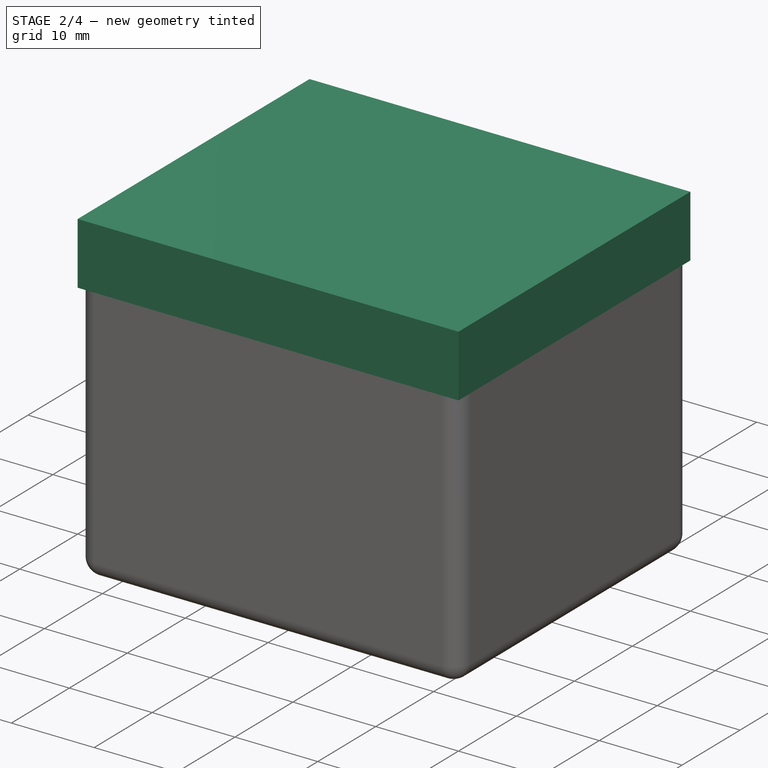
[diagram: stage 2 of 4 — iso view after this stage's code; geometry added in this stage tinted green]
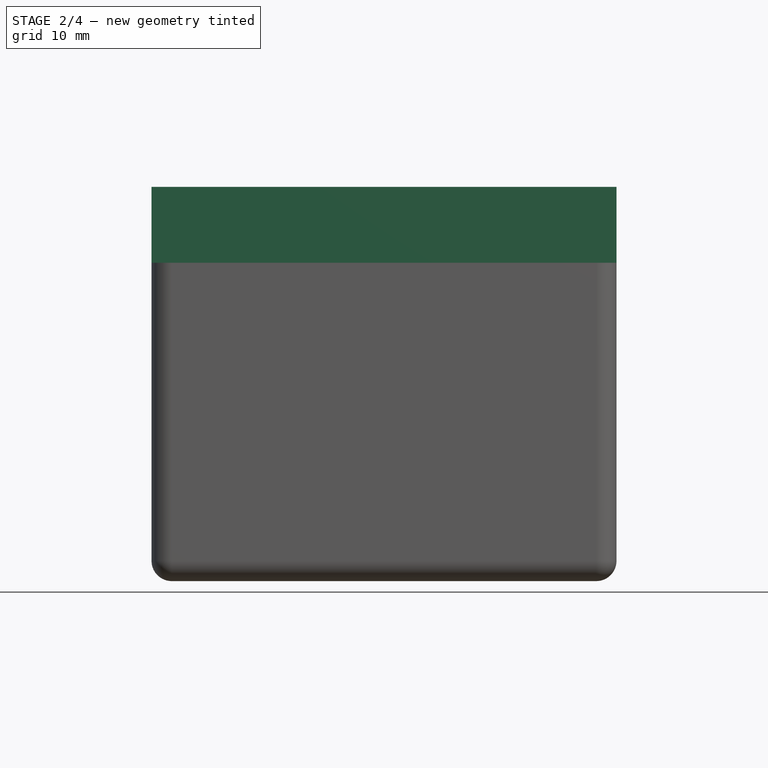
[diagram: stage 2 of 4 — front view after this stage's code; geometry added in this stage tinted green]
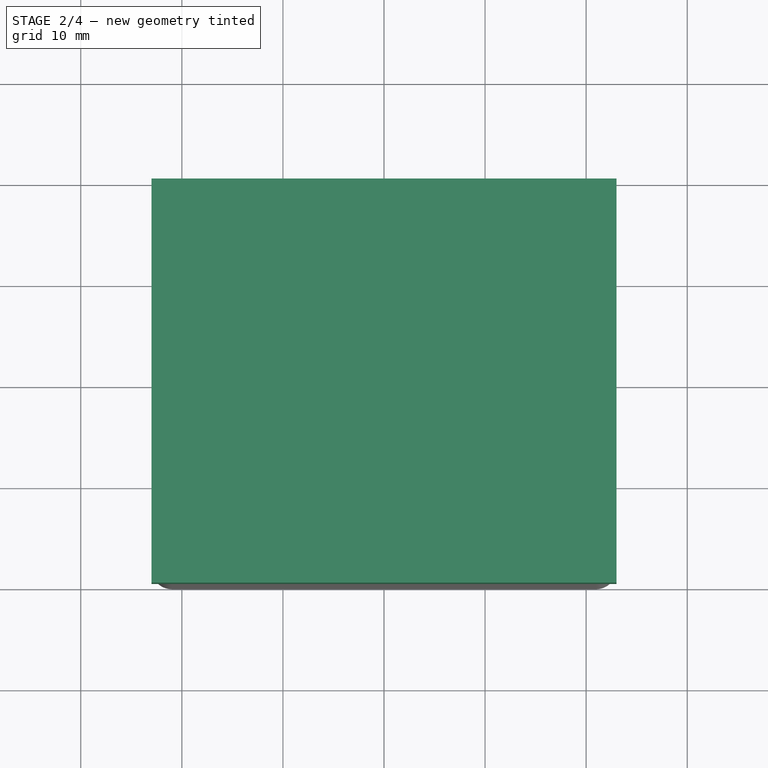
[diagram: stage 2 of 4 — top view after this stage's code; geometry added in this stage tinted green]
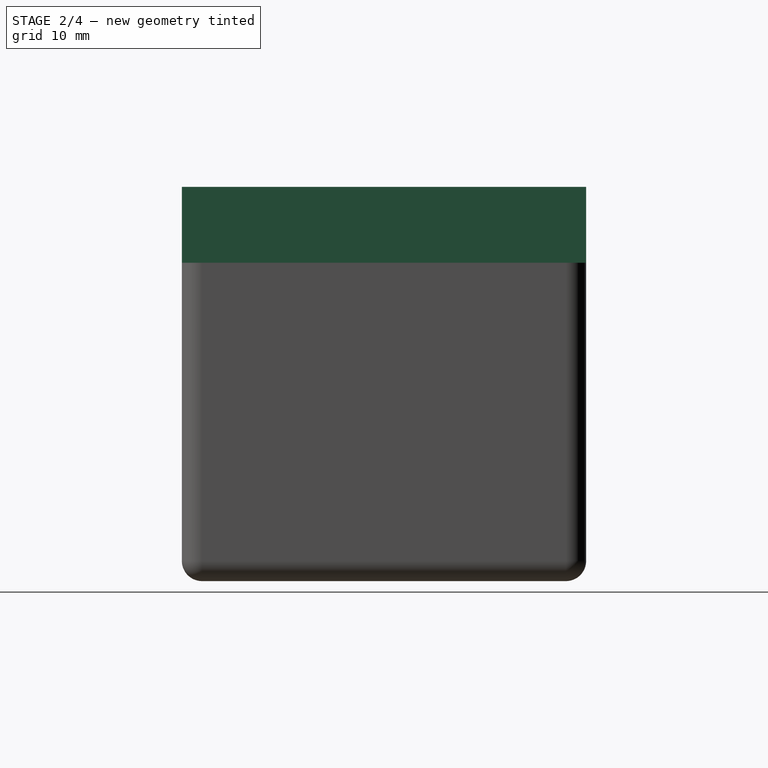
[diagram: stage 2 of 4 — right view after this stage's code; geometry added in this stage tinted green]
FEATURE [Sketcher::SketchObject] Sketch003
  AttachmentOffset = pos=(0,0,28.5) rot=(0,0,1;0rad)
  ExternalGeometry = -> [Sketch]
  MapMode = 5
  Placement = pos=(0,0,28.5) rot=(0,0,1;0rad)
  Support = -> [XY_Plane001]
  expr: AttachmentOffset.Base.z = Sketch002.Placement.Base.z + Pad001.Length - 3mm
  sketch-geometry (36):
    g0: ArcOfCircle CenterX=-21 CenterY=-18 CenterZ=0 NormalX=0 NormalY=0 NormalZ=1 AngleXU=0 Radius=10 StartAngle=0.48652 EndAngle=1.08428
    g1: ArcOfCircle CenterX=-21 CenterY=18 CenterZ=0 NormalX=0 NormalY=0 NormalZ=1 AngleXU=0 Radius=10 StartAngle=5.19891 EndAngle=5.79667
    g2: ArcOfCircle CenterX=21 CenterY=-18 CenterZ=0 NormalX=0 NormalY=0 NormalZ=1 AngleXU=0 Radius=10 StartAngle=2.05732 EndAngle=2.65507
    g3: LineSegment StartX=-23 StartY=20 StartZ=0 EndX=-20.9179 EndY=20 EndZ=0
    g4: LineSegment StartX=-20.9179 StartY=20 StartZ=0 EndX=-17.0952 EndY=16.1773 EndZ=0
    g5: LineSegment StartX=-17.0952 StartY=16.1773 StartZ=0 EndX=-15.4531 EndY=16.6172 EndZ=0
    g6: LineSegment StartX=-15.4531 StartY=16.6172 StartZ=0 EndX=-12.1603 EndY=13.3245 EndZ=0
    g7: LineSegment StartX=-23 StartY=20 StartZ=0 EndX=-23 EndY=17.9179 EndZ=0
    g8: LineSegment StartX=-23 StartY=17.9179 StartZ=0 EndX=-19.1773 EndY=14.0952 EndZ=0
    g9: LineSegment StartX=-19.1773 StartY=14.0952 StartZ=0 EndX=-19.6172 EndY=12.4531 EndZ=0
    g10: LineSegment StartX=-19.6172 StartY=12.4531 StartZ=0 EndX=-16.3245 EndY=9.16035 EndZ=0
    g11: LineSegment StartX=16.3245 StartY=-9.16035 StartZ=0 EndX=19.6172 EndY=-12.4531 EndZ=0
    g12: LineSegment StartX=19.6172 StartY=-12.4531 StartZ=0 EndX=19.1773 EndY=-14.0952 EndZ=0
    g13: LineSegment StartX=19.1773 StartY=-14.0952 StartZ=0 EndX=23 EndY=-17.9179 EndZ=0
    g14: LineSegment StartX=23 StartY=-17.9179 StartZ=0 EndX=23 EndY=-20 EndZ=0
    g15: LineSegment StartX=23 StartY=-20 StartZ=0 EndX=20.9179 EndY=-20 EndZ=0
    g16: LineSegment StartX=20.9179 StartY=-20 StartZ=0 EndX=17.0952 EndY=-16.1773 EndZ=0
    g17: LineSegment StartX=17.0952 StartY=-16.1773 StartZ=0 EndX=15.4531 EndY=-16.6172 EndZ=0
    g18: LineSegment StartX=15.4531 StartY=-16.6172 StartZ=0 EndX=12.1603 EndY=-13.3245 EndZ=0
    g19: LineSegment StartX=-12.1603 StartY=-13.3245 StartZ=0 EndX=-15.4531 EndY=-16.6172 EndZ=0
    g20: LineSegment StartX=-15.4531 StartY=-16.6172 StartZ=0 EndX=-17.0952 EndY=-16.1773 EndZ=0
    g21: LineSegment StartX=-17.0952 StartY=-16.1773 StartZ=0 EndX=-20.9179 EndY=-20 EndZ=0
    g22: LineSegment StartX=-20.9179 StartY=-20 StartZ=0 EndX=-23 EndY=-20 EndZ=0
    g23: LineSegment StartX=-23 StartY=-20 StartZ=0 EndX=-23 EndY=-17.9179 EndZ=0
    g24: LineSegment StartX=-23 StartY=-17.9179 StartZ=0 EndX=-19.1773 EndY=-14.0952 EndZ=0
    g25: LineSegment StartX=-19.1773 StartY=-14.0952 StartZ=0 EndX=-19.6172 EndY=-12.4531 EndZ=0
    g26: LineSegment StartX=-19.6172 StartY=-12.4531 StartZ=0 EndX=-16.3245 EndY=-9.16035 EndZ=0
    g27: ArcOfCircle CenterX=21 CenterY=18 CenterZ=0 NormalX=0 NormalY=0 NormalZ=1 AngleXU=0 Radius=10 StartAngle=3.62811 EndAngle=4.22587
    g28: LineSegment StartX=12.1603 StartY=13.3245 StartZ=0 EndX=15.4531 EndY=16.6172 EndZ=0
    g29: LineSegment StartX=15.4531 StartY=16.6172 StartZ=0 EndX=17.0952 EndY=16.1773 EndZ=0
    g30: LineSegment StartX=17.0952 StartY=16.1773 StartZ=0 EndX=20.9179 EndY=20 EndZ=0
    g31: LineSegment StartX=20.9179 StartY=20 StartZ=0 EndX=23 EndY=20 EndZ=0
    g32: LineSegment StartX=23 StartY=20 StartZ=0 EndX=23 EndY=17.9179 EndZ=0
    g33: LineSegment StartX=23 StartY=17.9179 StartZ=0 EndX=19.1773 EndY=14.0952 EndZ=0
    g34: LineSegment StartX=19.1773 StartY=14.0952 StartZ=0 EndX=19.6172 EndY=12.4531 EndZ=0
    g35: LineSegment StartX=19.6172 StartY=12.4531 StartZ=0 EndX=16.3245 EndY=9.16035 EndZ=0
  constraints (76):
    c: Coincident(g0,g-6)
    c: Coincident(g0,g-7)
    c: Coincident(g0,g-8)
    c: Coincident(g1,g-3)
    c: Coincident(g1,g-10)
    c: Coincident(g1,g-9)
    c: Coincident(g2,g-5)
    c: Coincident(g2,g-15)
    c: Coincident(g2,g-16)
    c: Coincident(g-23,g3)
    c: Coincident(g3,g-12)
    c: Coincident(g3,g4)
    c: Coincident(g4,g-12)
    c: Coincident(g4,g5)
    c: Coincident(g5,g-11)
    c: Coincident(g5,g6)
    c: Coincident(g6,g1)
    c: Coincident(g3,g7)
    c: Coincident(g7,g-13)
    c: Coincident(g7,g8)
    c: Coincident(g8,g-14)
    c: Coincident(g8,g9)
    c: Coincident(g9,g-14)
    c: Coincident(g9,g10)
    c: Coincident(g10,g1)
    c: Coincident(g2,g11)
    c: Coincident(g11,g-18)
    c: Coincident(g11,g12)
    c: Coincident(g12,g-19)
    c: Coincident(g12,g13)
    c: Coincident(g13,g-19)
    c: Coincident(g13,g14)
    c: Coincident(g14,g-24)
    c: Coincident(g14,g15)
    c: Coincident(g15,g-20)
    c: Coincident(g15,g16)
    c: Coincident(g16,g-20)
    c: Coincident(g16,g17)
    c: Coincident(g17,g-17)
    c: Coincident(g17,g18)
    c: Coincident(g18,g2)
    c: Coincident(g0,g19)
    c: Coincident(g19,g-26)
    c: Coincident(g19,g20)
    c: Coincident(g20,g-27)
    c: Coincident(g20,g21)
    c: Coincident(g21,g-27)
    c: Coincident(g21,g22)
    c: Coincident(g22,g-24)
    c: Coincident(g22,g23)
    c: Coincident(g23,g-28)
    c: Coincident(g23,g24)
    c: Coincident(g24,g-28)
    c: Coincident(g24,g25)
    c: Coincident(g25,g-25)
    c: Coincident(g25,g26)
    c: Coincident(g26,g0)
    c: Coincident(g27,g-4)
    c: Coincident(g27,g-29)
    c: Coincident(g27,g-30)
    c: Coincident(g27,g28)
    c: Coincident(g28,g-34)
    c: Coincident(g28,g29)
    c: Coincident(g29,g-34)
    c: Coincident(g29,g30)
    c: Coincident(g30,g-33)
    c: Coincident(g30,g31)
    c: Coincident(g31,g-22)
    c: Coincident(g31,g32)
    c: Coincident(g32,g-32)
    c: Coincident(g32,g33)
    c: Coincident(g33,g-32)
    c: Coincident(g33,g34)
    c: Coincident(g34,g-31)
    c: Coincident(g34,g35)
    c: Coincident(g35,g27)
FEATURE [Sketcher::SketchObject] Sketch004
  AttachmentOffset = pos=(0,31.5,0) rot=(0,0,1;0rad)
  MapMode = 5
  Placement = pos=(-7e-15,7e-15,31.5) rot=(0.57735,0.57735,0.57735;2.0944rad)
  Support = -> [YZ_Plane001]
  expr: AttachmentOffset.Base.y = Sketch002.Placement.Base.z + Pad001.Length
  sketch-geometry (1):
    g0: Circle CenterX=0 CenterY=0 CenterZ=0 NormalX=0 NormalY=0 NormalZ=1 AngleXU=0 Radius=4.7
  constraints (2):
    c: Coincident(g0,g-1)
    c: Radius(g0) = 4.7
FEATURE [Sketcher::SketchObject] Sketch005
  AttachmentOffset = pos=(0,31.5,0) rot=(0,0,1;0rad)
  MapMode = 5
  Placement = pos=(-7e-15,7e-15,31.5) rot=(-0.57735,0.57735,0.57735;4.18879rad)
  Support = -> [YZ_Plane001]
  expr: AttachmentOffset.Base.y = Sketch004.Placement.Base.z
  sketch-geometry (1):
    g0: Circle CenterX=0 CenterY=0 CenterZ=0 NormalX=0 NormalY=0 NormalZ=1 AngleXU=0 Radius=3.6
  constraints (2):
    c: Coincident(g0,g-1)
    c: Radius(g0) = 3.6
FEATURE [PartDesign::ShapeBinder] ShapeBinder
  Support = -> [Sketch]
  TraceSupport = false
FEATURE [Sketcher::SketchObject] Sketch006
  AttachmentOffset = pos=(0,0,30.5) rot=(0,0,1;0rad)
  ExternalGeometry = -> [ShapeBinder]
  MapMode = 5
  Placement = pos=(0,0,30.5) rot=(0,0,1;0rad)
  Support = -> [XY_Plane002]
  expr: AttachmentOffset.Base.z = Sketch002.Placement.Base.z + Pad001.Length - 1mm
  sketch-geometry (16):
    g0: ArcOfCircle CenterX=-21 CenterY=18 CenterZ=0 NormalX=0 NormalY=0 NormalZ=1 AngleXU=0 Radius=10.2 StartAngle=4.732 EndAngle=6.26358
    g1: ArcOfCircle CenterX=21 CenterY=18 CenterZ=0 NormalX=0 NormalY=0 NormalZ=1 AngleXU=0 Radius=10.2 StartAngle=3.1612 EndAngle=4.69278
    g2: ArcOfCircle CenterX=21 CenterY=-18 CenterZ=0 NormalX=0 NormalY=0 NormalZ=1 AngleXU=0 Radius=10.2 StartAngle=1.59041 EndAngle=3.12198
    g3: ArcOfCircle CenterX=-21 CenterY=-18 CenterZ=0 NormalX=0 NormalY=0 NormalZ=1 AngleXU=0 Radius=10.2 StartAngle=0.0196091 EndAngle=1.55119
    g4: LineSegment StartX=-10.802 StartY=17.8 StartZ=0 EndX=10.802 EndY=17.8 EndZ=0
    g5: LineSegment StartX=20.8 StartY=7.80196 StartZ=0 EndX=20.8 EndY=-7.80196 EndZ=0
    g6: LineSegment StartX=10.802 StartY=-17.8 StartZ=0 EndX=-10.802 EndY=-17.8 EndZ=0
    g7: LineSegment StartX=-20.8 StartY=-7.80196 StartZ=0 EndX=-20.8 EndY=7.80196 EndZ=0
    g8: ArcOfCircle CenterX=-21 CenterY=18 CenterZ=0 NormalX=0 NormalY=0 NormalZ=1 AngleXU=0 Radius=11 StartAngle=4.80342 EndAngle=6.19215
    g9: ArcOfCircle CenterX=21 CenterY=18 CenterZ=0 NormalX=0 NormalY=0 NormalZ=1 AngleXU=0 Radius=11 StartAngle=3.23263 EndAngle=4.62135
    g10: ArcOfCircle CenterX=21 CenterY=-18 CenterZ=0 NormalX=0 NormalY=0 NormalZ=1 AngleXU=0 Radius=11 StartAngle=1.66183 EndAngle=3.05056
    g11: ArcOfCircle CenterX=-21 CenterY=-18 CenterZ=0 NormalX=0 NormalY=0 NormalZ=1 AngleXU=0 Radius=11 StartAngle=0.0910348 EndAngle=1.47976
    g12: LineSegment StartX=-20 StartY=7.04555 StartZ=0 EndX=-20 EndY=-7.04555 EndZ=0
    g13: LineSegment StartX=-10.0455 StartY=-17 StartZ=0 EndX=10.0455 EndY=-17 EndZ=0
    g14: LineSegment StartX=20 StartY=-7.04555 StartZ=0 EndX=20 EndY=7.04555 EndZ=0
    g15: LineSegment StartX=10.0455 StartY=17 StartZ=0 EndX=-10.0455 EndY=17 EndZ=0
  constraints (40):
    c: Coincident(g0,g-4)
    c: Coincident(g0,g-4)
    c: Coincident(g0,g-4)
    c: Coincident(g1,g-5)
    c: Coincident(g1,g-5)
    c: Coincident(g1,g-5)
    c: Coincident(g2,g-6)
    c: Coincident(g2,g-6)
    c: Coincident(g2,g-6)
    c: Coincident(g3,g-3)
    c: Coincident(g3,g-3)
    c: Coincident(g3,g-3)
    c: Coincident(g4,g0)
    c: Coincident(g4,g1)
    c: Coincident(g5,g1)
    c: Coincident(g5,g2)
    c: Coincident(g6,g2)
    c: Coincident(g6,g3)
    c: Coincident(g7,g3)
    c: Coincident(g7,g0)
    c: Coincident(g8,g0)
    c: Coincident(g8,g-7)
    c: Coincident(g8,g-7)
    c: Coincident(g9,g1)
    c: Coincident(g9,g-8)
    c: Coincident(g9,g-8)
    c: Coincident(g10,g2)
    c: Coincident(g10,g-9)
    c: Coincident(g10,g-9)
    c: Coincident(g11,g3)
    c: Coincident(g11,g-10)
    c: Coincident(g11,g-10)
    c: Coincident(g12,g8)
    c: Coincident(g12,g11)
    c: Coincident(g13,g11)
    c: Coincident(g13,g10)
    c: Coincident(g14,g10)
    c: Coincident(g14,g9)
    c: Coincident(g15,g9)
    c: Coincident(g15,g8)
FEATURE [PartDesign::Pad] Pad002
  Length = 1
  Length2 = 100
  Profile = -> Sketch006
  Type = 0
FEATURE [Sketcher::SketchObject] Sketch007
  AttachmentOffset = pos=(0,0,31.5) rot=(0,0,1;0rad)
  ExternalGeometry = -> [ShapeBinder]
  MapMode = 5
  Placement = pos=(0,0,31.5) rot=(0,0,1;0rad)
  Support = -> [XY_Plane002]
  expr: AttachmentOffset.Base.z = Sketch006.Placement.Base.z + Pad002.Length
  sketch-geometry (16):
    g0: ArcOfCircle CenterX=-21 CenterY=18 CenterZ=0 NormalX=0 NormalY=0 NormalZ=1 AngleXU=0 Radius=11 StartAngle=4.80342 EndAngle=6.19215
    g1: ArcOfCircle CenterX=21 CenterY=18 CenterZ=0 NormalX=0 NormalY=0 NormalZ=1 AngleXU=0 Radius=11 StartAngle=3.23263 EndAngle=4.62135
    g2: ArcOfCircle CenterX=21 CenterY=-18 CenterZ=0 NormalX=0 NormalY=0 NormalZ=1 AngleXU=0 Radius=11 StartAngle=1.66183 EndAngle=3.05056
    g3: ArcOfCircle CenterX=-21 CenterY=-18 CenterZ=0 NormalX=0 NormalY=0 NormalZ=1 AngleXU=0 Radius=11 StartAngle=0.0910348 EndAngle=1.47976
    g4: LineSegment StartX=-10.0455 StartY=17 StartZ=0 EndX=10.0455 EndY=17 EndZ=0
    g5: LineSegment StartX=20 StartY=7.04555 StartZ=0 EndX=20 EndY=-7.04555 EndZ=0
    g6: LineSegment StartX=10.0455 StartY=-17 StartZ=0 EndX=-10.0455 EndY=-17 EndZ=0
    g7: LineSegment StartX=-20 StartY=-7.04555 StartZ=0 EndX=-20 EndY=7.04555 EndZ=0
    g8: LineSegment StartX=-23 StartY=20 StartZ=0 EndX=23 EndY=20 EndZ=0
    g9: LineSegment StartX=23 StartY=20 StartZ=0 EndX=23 EndY=-20 EndZ=0
    g10: LineSegment StartX=23 StartY=-20 StartZ=0 EndX=-23 EndY=-20 EndZ=0
    g11: LineSegment StartX=-23 StartY=-20 StartZ=0 EndX=-23 EndY=20 EndZ=0
    g12: Circle CenterX=-16.3331 CenterY=13.3331 CenterZ=0 NormalX=0 NormalY=0 NormalZ=1 AngleXU=0 Radius=1.75
    g13: Circle CenterX=16.3331 CenterY=13.3331 CenterZ=0 NormalX=0 NormalY=0 NormalZ=1 AngleXU=0 Radius=1.75
    g14: Circle CenterX=16.3331 CenterY=-13.3331 CenterZ=0 NormalX=0 NormalY=0 NormalZ=1 AngleXU=0 Radius=1.75
    g15: Circle CenterX=-16.3331 CenterY=-13.3331 CenterZ=0 NormalX=0 NormalY=0 NormalZ=1 AngleXU=0 Radius=1.75
  constraints (36):
    c: Coincident(g0,g-6)
    c: Coincident(g0,g-6)
    c: Coincident(g0,g-6)
    c: Coincident(g1,g-7)
    c: Coincident(g1,g-7)
    c: Coincident(g1,g-7)
    c: Coincident(g2,g-8)
    c: Coincident(g2,g-8)
    c: Coincident(g2,g-8)
    c: Coincident(g3,g-5)
    c: Coincident(g3,g-5)
    c: Coincident(g3,g-5)
    c: Coincident(g4,g0)
    c: Coincident(g4,g1)
    c: Coincident(g5,g1)
    c: Coincident(g5,g2)
    c: Coincident(g6,g2)
    c: Coincident(g6,g3)
    c: Coincident(g7,g3)
    c: Coincident(g7,g0)
    c: Coincident(g8,g9)
    c: Coincident(g9,g10)
    c: Coincident(g10,g11)
    c: Coincident(g11,g8)
    c: Coincident(g8,g-3)
    c: Coincident(g9,g-4)
    c: Coincident(g8,g-3)
    c: Coincident(g10,g-4)
    c: Coincident(g12,g-9)
    c: Coincident(g13,g-10)
    c: Coincident(g14,g-11)
    c: Coincident(g15,g-12)
    c: Equal(g15,g-12)
    c: Equal(g12,g-9)
    c: Equal(g13,g-10)
    c: Equal(g14,g-11)
FEATURE [PartDesign::Pad] Pad003
  BaseFeature = -> Pad002
  Length = 6
  Length2 = 100
  Profile = -> Sketch007
  Refine = true
  Type = 0
FEATURE [Sketcher::SketchObject] Sketch008
  AttachmentOffset = pos=(0,0,37.5) rot=(0,0,1;0rad)
  ExternalGeometry = -> [ShapeBinder]
  MapMode = 5
  Placement = pos=(0,0,37.5) rot=(0,0,1;0rad)
  Support = -> [XY_Plane002]
  expr: AttachmentOffset.Base.z = Sketch007.Placement.Base.z + Pad003.Length
  sketch-geometry (4):
    g0: LineSegment StartX=-23 StartY=20 StartZ=0 EndX=23 EndY=20 EndZ=0
    g1: LineSegment StartX=23 StartY=20 StartZ=0 EndX=23 EndY=-20 EndZ=0
    g2: LineSegment StartX=23 StartY=-20 StartZ=0 EndX=-23 EndY=-20 EndZ=0
    g3: LineSegment StartX=-23 StartY=-20 StartZ=0 EndX=-23 EndY=20 EndZ=0
  constraints (8):
    c: Coincident(g0,g1)
    c: Coincident(g1,g2)
    c: Coincident(g2,g3)
    c: Coincident(g3,g0)
    c: Coincident(g0,g-3)
    c: Coincident(g1,g-4)
    c: Coincident(g0,g-3)
    c: Coincident(g2,g-4)
FEATURE [PartDesign::Pad] Pad004
  BaseFeature = -> Pad003
  Length = 1.5
  Length2 = 100
  Profile = -> Sketch008
  Refine = true
  Type = 0
  expr: Length = Pad.Length
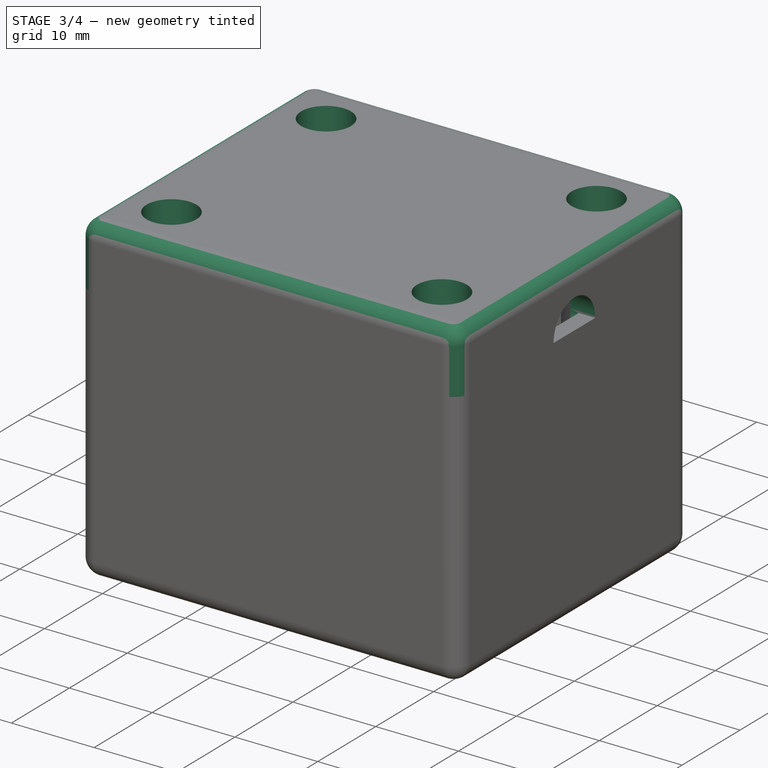
[diagram: stage 3 of 4 — iso view after this stage's code; geometry added in this stage tinted green]
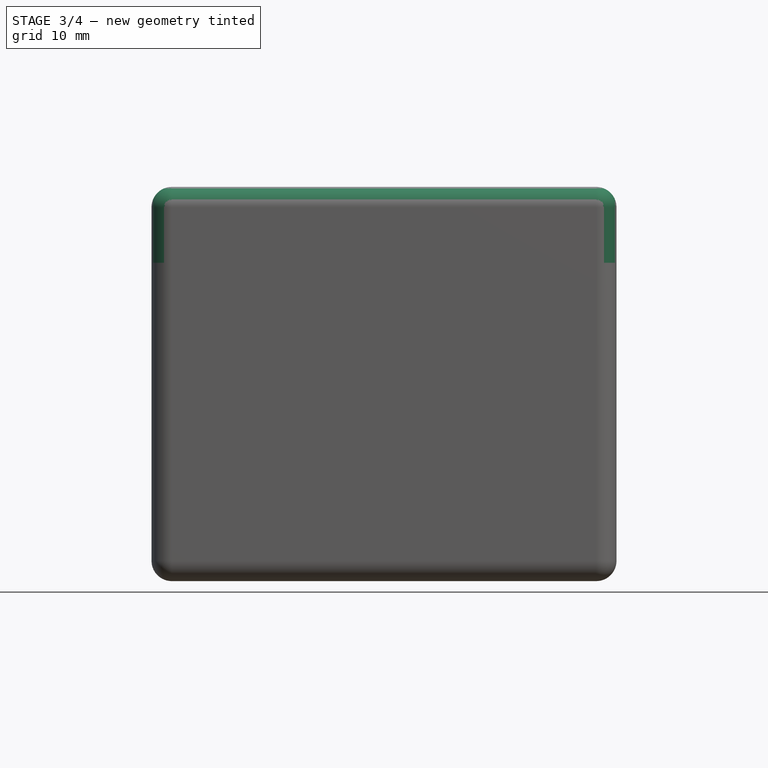
[diagram: stage 3 of 4 — front view after this stage's code; geometry added in this stage tinted green]
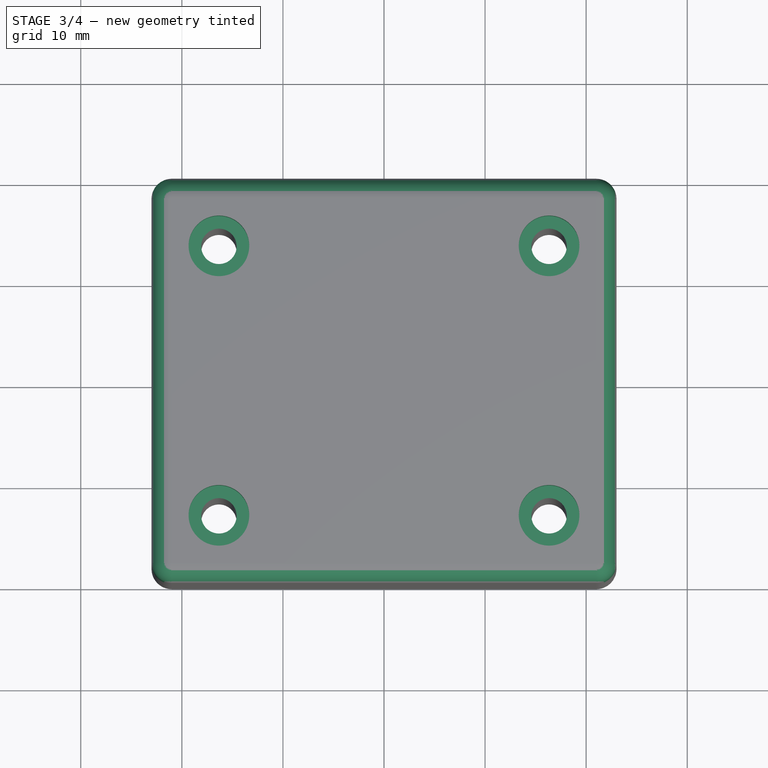
[diagram: stage 3 of 4 — top view after this stage's code; geometry added in this stage tinted green]
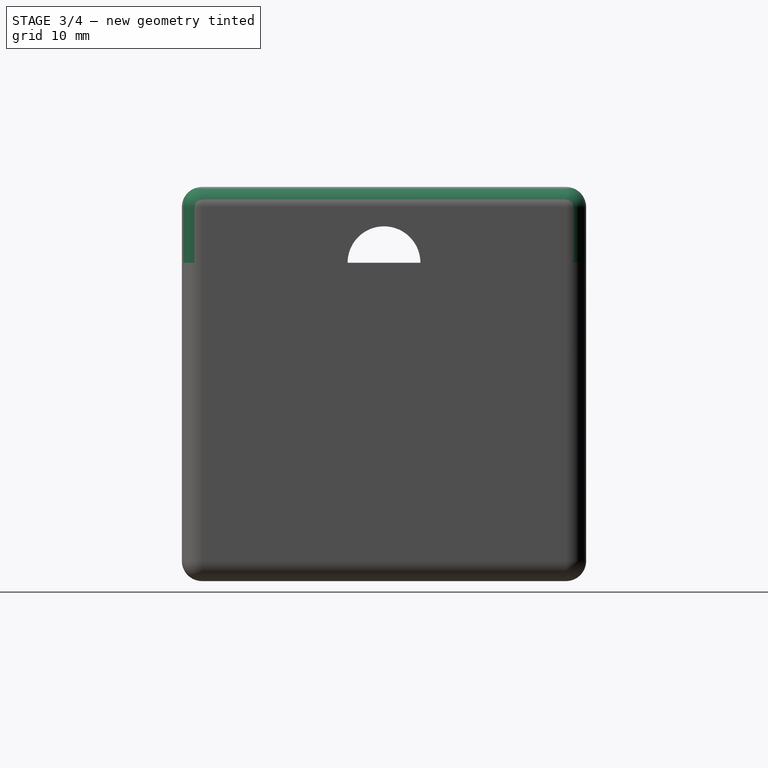
[diagram: stage 3 of 4 — right view after this stage's code; geometry added in this stage tinted green]
FEATURE [Sketcher::SketchObject] Sketch009
  AttachmentOffset = pos=(0,31.5,0) rot=(0,0,1;0rad)
  MapMode = 5
  Placement = pos=(-7e-15,7e-15,31.5) rot=(0.57735,0.57735,0.57735;2.0944rad)
  Support = -> [YZ_Plane002]
  expr: AttachmentOffset.Base.y = Sketch004.Placement.Base.z
  sketch-geometry (1):
    g0: Circle CenterX=0 CenterY=0 CenterZ=0 NormalX=0 NormalY=0 NormalZ=1 AngleXU=0 Radius=4.7
  constraints (2):
    c: Coincident(g0,g-1)
    c: Radius(g0) = 4.7
FEATURE [Sketcher::SketchObject] Sketch010
  AttachmentOffset = pos=(0,31.5,0) rot=(0,0,1;0rad)
  MapMode = 5
  Placement = pos=(-7e-15,7e-15,31.5) rot=(-0.57735,0.57735,0.57735;4.18879rad)
  Support = -> [YZ_Plane002]
  expr: AttachmentOffset.Base.y = Sketch004.Placement.Base.z
  sketch-geometry (1):
    g0: Circle CenterX=0 CenterY=0 CenterZ=0 NormalX=0 NormalY=0 NormalZ=1 AngleXU=0 Radius=3.6
  constraints (2):
    c: Coincident(g0,g-1)
    c: Radius(g0) = 3.6
FEATURE [Sketcher::SketchObject] Sketch011
  AttachmentOffset = pos=(0,0,39) rot=(0,0,1;0rad)
  ExternalGeometry = -> [ShapeBinder]
  MapMode = 5
  Placement = pos=(0,0,39) rot=(0,0,1;0rad)
  Support = -> [XY_Plane002]
  expr: Constraints[7] = Screws.M3HeadRadius
  expr: AttachmentOffset.Base.z = Sketch008.Placement.Base.z + Pad004.Length
  sketch-geometry (4):
    g0: Circle CenterX=-16.3331 CenterY=13.3331 CenterZ=0 NormalX=0 NormalY=0 NormalZ=1 AngleXU=0 Radius=3
    g1: Circle CenterX=16.3331 CenterY=13.3331 CenterZ=0 NormalX=0 NormalY=0 NormalZ=1 AngleXU=0 Radius=3
    g2: Circle CenterX=16.3331 CenterY=-13.3331 CenterZ=0 NormalX=0 NormalY=0 NormalZ=1 AngleXU=0 Radius=3
    g3: Circle CenterX=-16.3331 CenterY=-13.3331 CenterZ=0 NormalX=0 NormalY=0 NormalZ=1 AngleXU=0 Radius=3
  constraints (8):
    c: Coincident(g0,g-3)
    c: Coincident(g1,g-4)
    c: Coincident(g2,g-5)
    c: Coincident(g3,g-6)
    c: Equal(g0,g1)
    c: Equal(g1,g2)
    c: Equal(g2,g3)
    c: Radius(g0) = 3
FEATURE [PartDesign::Fillet] Fillet
  Base = -> Pad004 [Face1,Edge72,Edge71,Edge5,Edge6]
  BaseFeature = -> Pad004
  Radius = 2
FEATURE [PartDesign::Pocket] Pocket005
  BaseFeature = -> Fillet
  Length = 2.95
  Length2 = 100
  Profile = -> Sketch011
  Type = 0
  expr: Length = Screws.M3HeadHeight
FEATURE [PartDesign::Pocket] Pocket003
  BaseFeature = -> Pocket005
  Length = 5
  Length2 = 100
  Profile = -> Sketch009
  Type = 1
FEATURE [PartDesign::Pocket] Pocket004
  BaseFeature = -> Pocket003
  Length = 5
  Length2 = 100
  Profile = -> Sketch010
  Type = 1
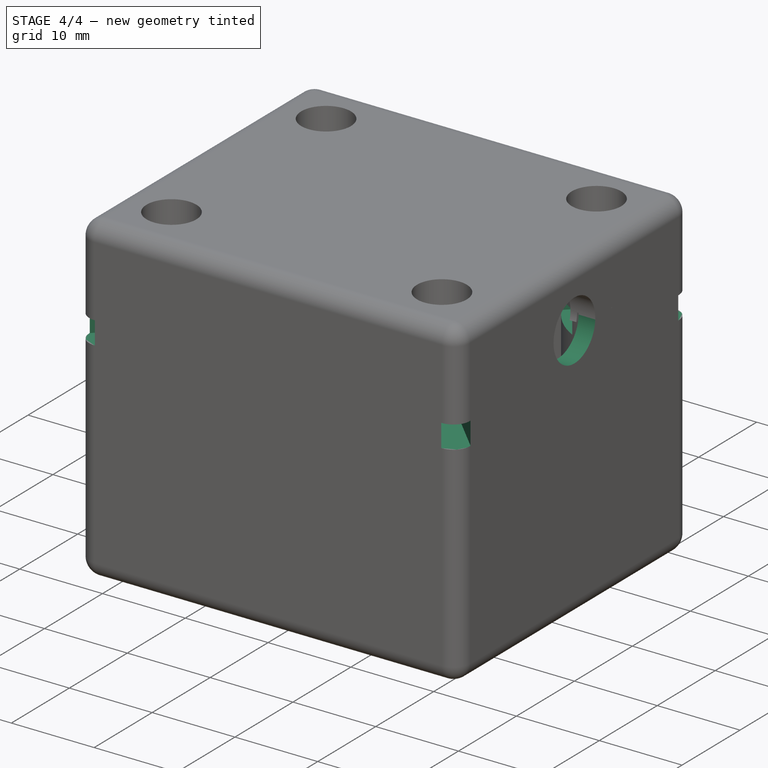
[diagram: stage 4 of 4 — iso view after this stage's code; geometry added in this stage tinted green]
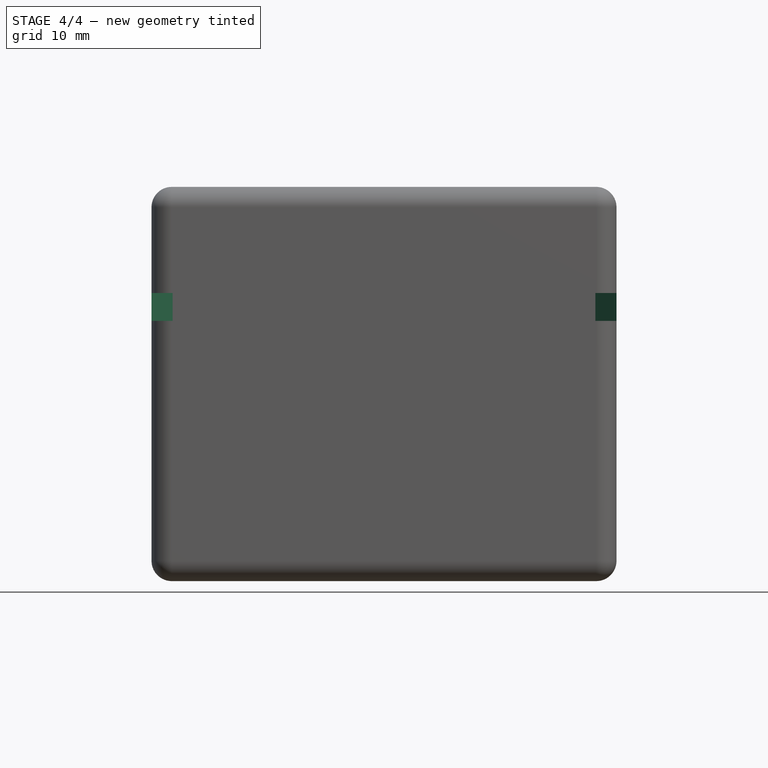
[diagram: stage 4 of 4 — front view after this stage's code; geometry added in this stage tinted green]
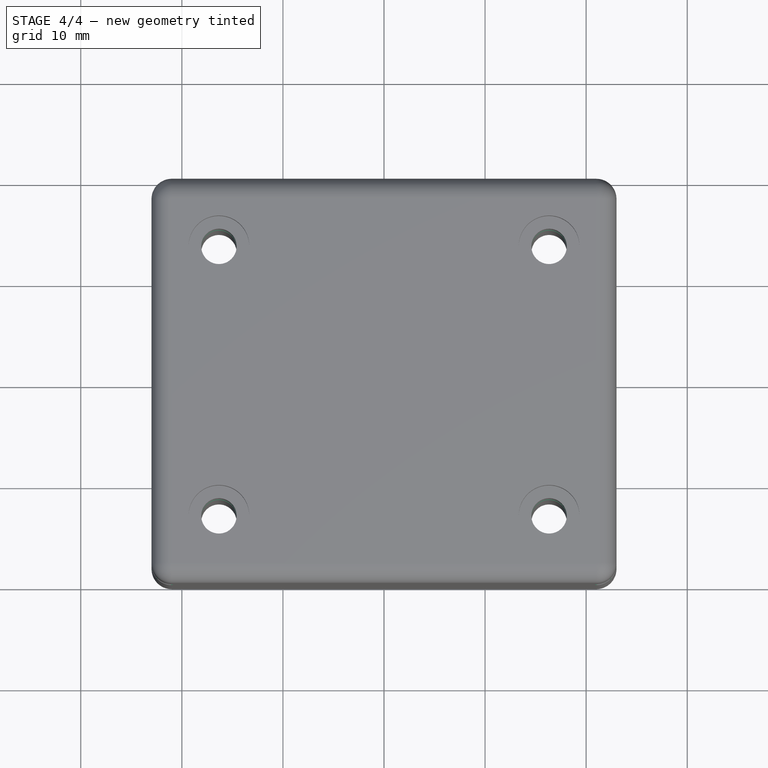
[diagram: stage 4 of 4 — top view after this stage's code; geometry added in this stage tinted green]
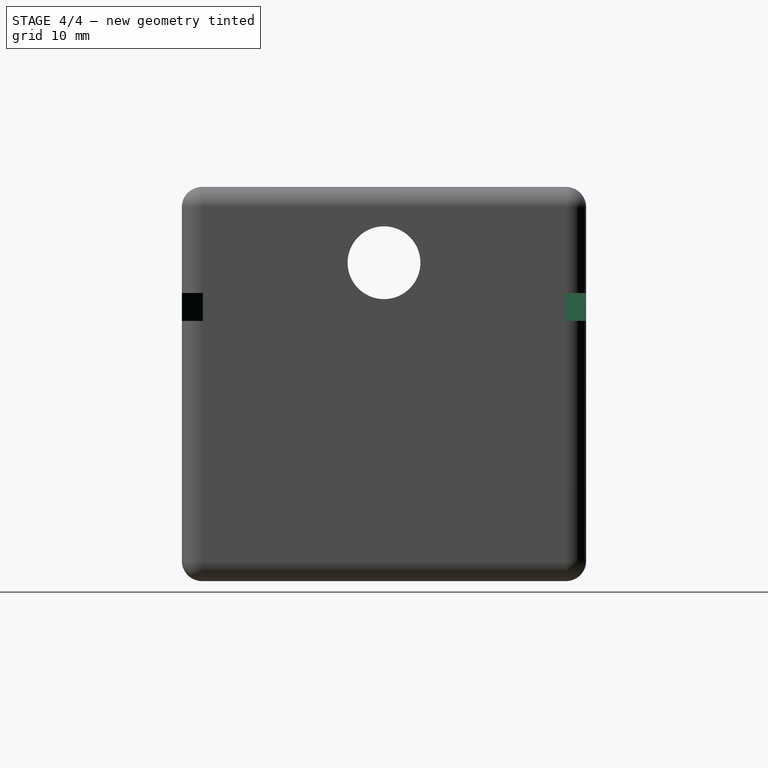
[diagram: stage 4 of 4 — right view after this stage's code; geometry added in this stage tinted green]
FEATURE [PartDesign::Pocket] Pocket
  BaseFeature = -> Fillet001
  Length = 2.75
  Length2 = 100
  Profile = -> Sketch003
  Type = 0
  expr: Length = Screws.M3NutHeight
FEATURE [PartDesign::Pocket] Pocket001
  BaseFeature = -> Pocket
  Length = 5
  Length2 = 100
  Profile = -> Sketch004
  Type = 1
FEATURE [PartDesign::Pocket] Pocket002
  BaseFeature = -> Pocket001
  Length = 5
  Length2 = 100
  Profile = -> Sketch005
  Type = 1
FEATURE [PartDesign::Body] Body
  Group = -> [Sketch,Sketch001,Pad,Sketch002,Pad001,Sketch003,Fillet001,Pocket,Sketch004,Pocket001,Pocket002,Sketch005]
  Origin = -> Origin001
  Tip = -> Pocket002
FEATURE [App::Part] Part
  Group = -> [Body,Body001]
  Origin = -> Origin
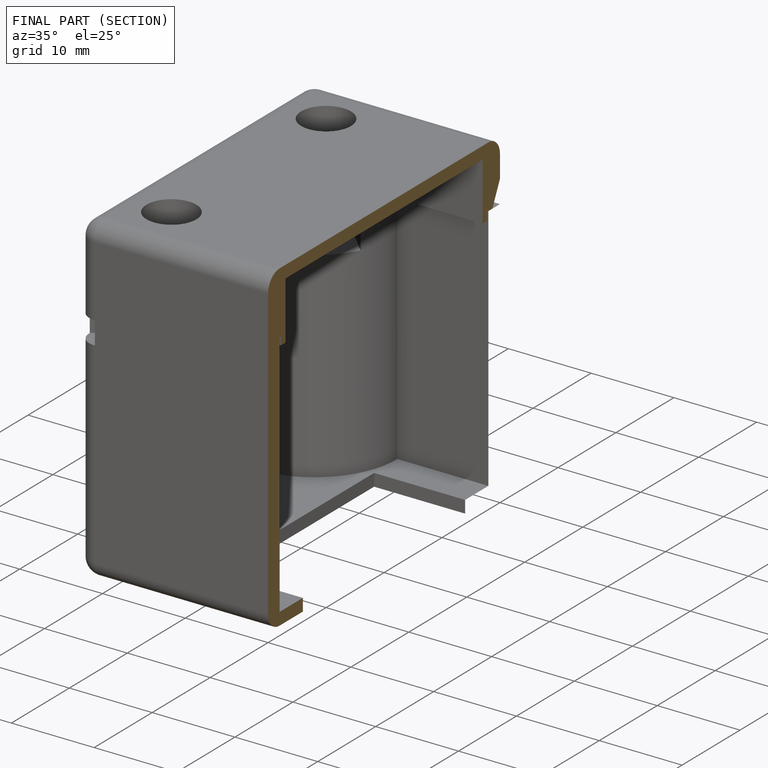
[diagram: finished part — half-section view (interior)]
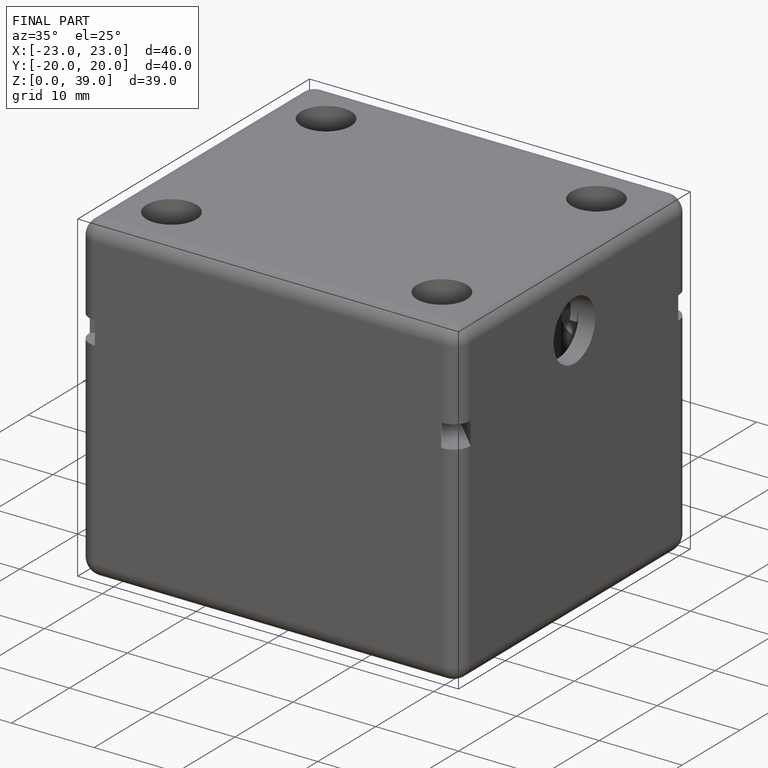
[diagram: finished part — iso view with bounding-box wireframe]
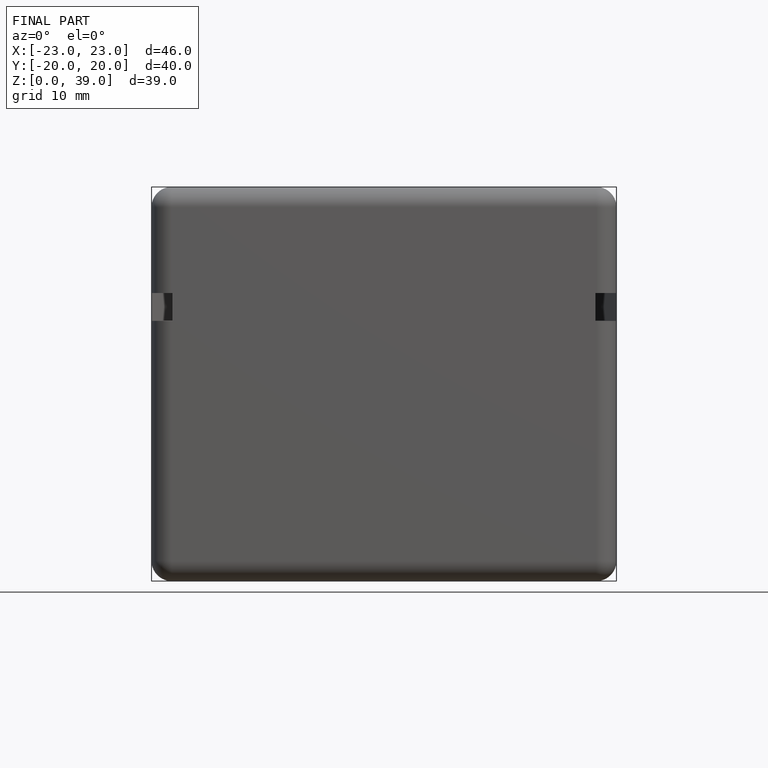
[diagram: finished part — front view with bounding-box wireframe]
